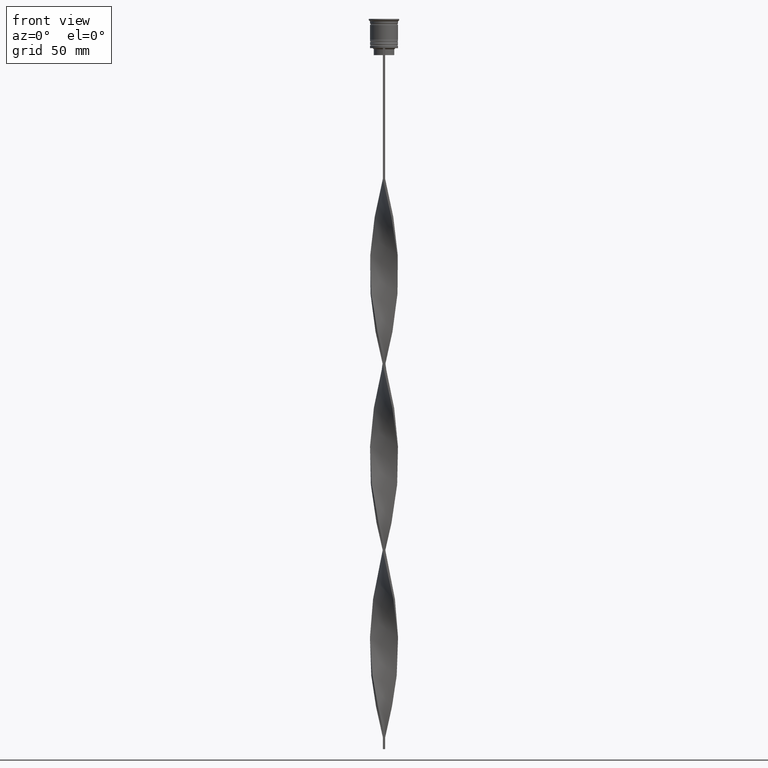
[diagram: clean part render]
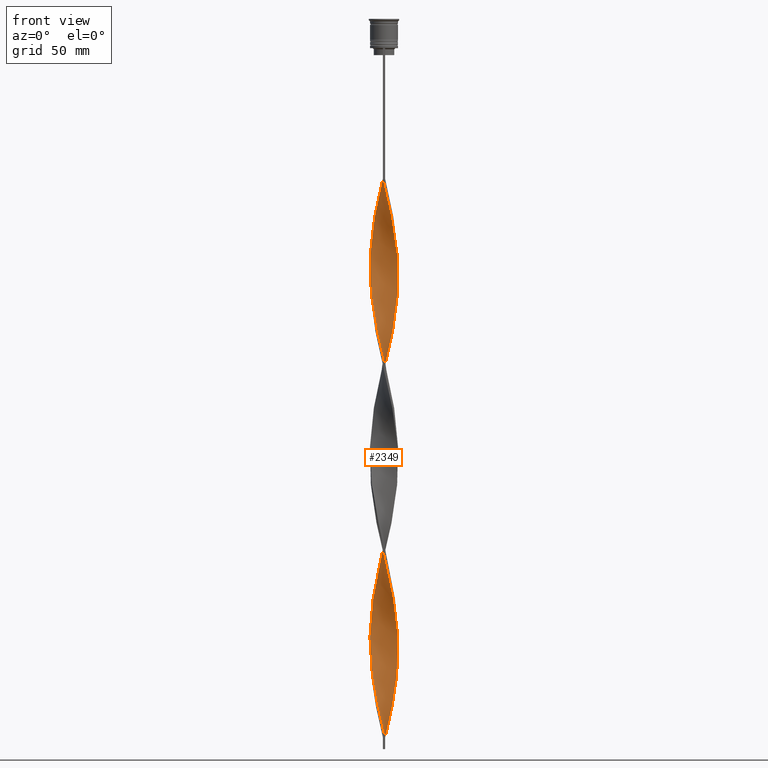
[diagram: same view with one face highlighted and labeled with its STEP entity id]
A machine part, front view. The second image highlights one B-rep face of the part: STEP entity #2349.
In plain terms, the highlighted face is a freeform B-spline surface patch.
Its self-contained STEP definition (entity closure, byte-faithful):
#4 = CARTESIAN_POINT ( 'NONE',  ( 2.766568768664326328, 5.368484725653163814, -138.2083333333333144 ) ) ;
#12 = CARTESIAN_POINT ( 'NONE',  ( -3.122203016567365985, -5.147994592395920499, -291.5666666666667197 ) ) ;
#18 = CARTESIAN_POINT ( 'NONE',  ( 5.393717298852745756, 2.717047055421899948, -122.2750000000000341 ) ) ;
#25 = CARTESIAN_POINT ( 'NONE',  ( -6.039350853412310371, 0.02778975905228745977, -189.9916666666667027 ) ) ;
#39 = CARTESIAN_POINT ( 'NONE',  ( -4.290116269486021316, 4.250815615339194053, -245.7583333333333826 ) ) ;
#43 = CARTESIAN_POINT ( 'NONE',  ( 4.902271885939097906, 3.527358977712830246, -126.2583333333333258 ) ) ;
#56 = CARTESIAN_POINT ( 'NONE',  ( 5.960649146587692293, 0.9722102409477122453, -189.9916666666667027 ) ) ;
#60 = CARTESIAN_POINT ( 'NONE',  ( 4.596194077712558723, 3.889087296526011261, -128.2500000000000000 ) ) ;
#64 = CARTESIAN_POINT ( 'NONE',  ( 2.766568768664326328, 5.368484725653163814, -297.5416666666666856 ) ) ;
#71 = CARTESIAN_POINT ( 'NONE',  ( -5.393717298852745756, 2.717047055421900836, -94.39166666666669414 ) ) ;
#72 = CARTESIAN_POINT ( 'NONE',  ( -5.735176475513732441, -1.892691680130197174, -273.6416666666666515 ) ) ;
#77 = CARTESIAN_POINT ( 'NONE',  ( -1.839832417264293252, 5.752351491147217999, -158.1250000000000000 ) ) ;
#84 = VECTOR ( 'NONE', #731, 1000.000000000000000 ) ;
#93 = CARTESIAN_POINT ( 'NONE',  ( -2.329630224397260641, 5.551830600583447684, -76.46666666666666856 ) ) ;
#95 = CARTESIAN_POINT ( 'NONE',  ( 5.368484725653162926, 2.766568768664326772, -197.9583333333333997 ) ) ;
#100 = CARTESIAN_POINT ( 'NONE',  ( 6.000000000000000000, -0.5000000000000001110, -108.3333333333333428 ) ) ;
#113 = CARTESIAN_POINT ( 'NONE',  ( -3.931220010942312992, 4.560209340103448028, -84.43333333333333712 ) ) ;
#118 = CARTESIAN_POINT ( 'NONE',  ( -4.596194077712559611, -3.889087296526010373, -207.9166666666666572 ) ) ;
#132 =( BOUNDED_SURFACE ( )  B_SPLINE_SURFACE ( 1, 2, ( 
 ( #1364, #979, #665, #1932, #1057, #346, #1976, #2332, #2928, #2910, #2950, #2315, #706, #2567, #3177, #1619, #2250, #2600, #3592, #3574, #100, #329, #724, #1911, #2893, #2272, #3513, #18, #3859, #43, #60, #3260, #1017, #1995, #1307, #2293, #1594, #2868, #1285, #682, #3531, #3555, #3241, #395, #1662, #77, #1343, #2391, #1382, #137, #2661, #3646, #2681, #2075, #1158, #3302, #782, #3628, #2410, #1076, #2040, #742, #766, #1426, #826, #3940, #3341, #3917, #2703, #2970, #118, #2056, #493, #3959, #1459, #1764, #3977, #1706, #2372, #3612, #452, #468, #513, #196, #801, #1135, #160, #2720, #2737, #3998, #3030, #2351, #2015, #1724, #436, #3283, #179, #3319, #1740, #2988, #1402, #2435, #2100, #1100, #3006, #3667, #1118, #1442, #3363, #1783, #3046, #2501, #305, #1240, #2200, #4021, #1802, #1527, #3398, #1842, #932 ),
 ( #3064, #1507, #1550, #4108, #1885, #1569, #3776, #2118, #3463, #3110, #2826, #3754, #844, #2474, #1259, #596, #529, #4090, #3380, #217, #3725, #2520, #887, #282, #911, #241, #1220, #617, #2844, #2455, #3090, #2180, #3688, #3707, #1487, #2783, #3425, #2763, #1179, #863, #2160, #3444, #3154, #2136, #551, #1823, #4042, #576, #261, #1861, #2803, #1199, #4062, #3129, #994, #391, #342, #3255, #3875, #370, #3794, #56, #952, #2222, #720, #95, #3817, #3237, #3190, #702, #1657, #3527, #3490, #324, #3855, #3508, #2923, #1035, #2311, #1947, #1611, #639, #660, #1012, #3549, #2887, #3570, #2942, #975, #39, #2616, #3217, #1320, #407, #1675, #1926, #1589, #3836, #2537, #1905, #2286, #2907, #1991, #72, #3172, #2596, #1637, #1972, #1337, #2245, #2266, #2864, #12, #1279, #2561, #1303, #2580, #678, #2088, #3638, #2402 ) ),
 .UNSPECIFIED., .F., .F., .F. ) 
 B_SPLINE_SURFACE_WITH_KNOTS ( ( 2, 2 ),
 ( 3, 2, 2, 2, 2, 2, 2, 2, 2, 2, 2, 2, 2, 2, 2, 2, 2, 2, 2, 2, 2, 2, 2, 2, 2, 2, 2, 2, 2, 2, 2, 2, 2, 2, 2, 2, 2, 2, 2, 2, 2, 2, 2, 2, 2, 2, 2, 2, 2, 2, 2, 2, 2, 2, 2, 2, 2, 2, 2, 2, 3 ),
 ( 0.000000000000000000, 1.000000000000000000 ),
 ( 0.000000000000000000, 0.01250000000000000069, 0.02500000000000000139, 0.03749999999999999861, 0.05000000000000000278, 0.06250000000000000000, 0.07499999999999999722, 0.08749999999999999445, 0.1000000000000000056, 0.1125000000000000028, 0.1250000000000000000, 0.1375000000000000111, 0.1499999999999999944, 0.1625000000000000056, 0.1749999999999999889, 0.1875000000000000000, 0.2000000000000000111, 0.2124999999999999944, 0.2250000000000000056, 0.2374999999999999889, 0.2500000000000000000, 0.2625000000000000111, 0.2750000000000000222, 0.2874999999999999778, 0.2999999999999999889, 0.3125000000000000000, 0.3250000000000000111, 0.3375000000000000222, 0.3499999999999999778, 0.3624999999999999889, 0.3750000000000000000, 0.3875000000000000111, 0.4000000000000000222, 0.4124999999999999778, 0.4249999999999999889, 0.4375000000000000000, 0.4500000000000000111, 0.4625000000000000222, 0.4749999999999999778, 0.4874999999999999889, 0.5000000000000000000, 0.5124999999999999556, 0.5250000000000000222, 0.5374999999999999778, 0.5500000000000000444, 0.5625000000000000000, 0.5749999999999999556, 0.5875000000000000222, 0.5999999999999999778, 0.6125000000000000444, 0.6250000000000000000, 0.6374999999999999556, 0.6500000000000000222, 0.6624999999999999778, 0.6750000000000000444, 0.6875000000000000000, 0.6999999999999999556, 0.7125000000000000222, 0.7249999999999999778, 0.7375000000000000444, 0.7500000000000000000 ),
 .UNSPECIFIED. ) 
 GEOMETRIC_REPRESENTATION_ITEM ( )  RATIONAL_B_SPLINE_SURFACE ( (
 ( 1.000000000000000000, 0.9969173337331279638, 1.000000000000000000, 0.9969173337331279638, 1.000000000000000000, 0.9969173337331279638, 1.000000000000000000, 0.9969173337331279638, 1.000000000000000000, 0.9969173337331279638, 1.000000000000000000, 0.9969173337331279638, 1.000000000000000000, 0.9969173337331279638, 1.000000000000000000, 0.9969173337331279638, 1.000000000000000000, 0.9969173337331279638, 1.000000000000000000, 0.9969173337331279638, 1.000000000000000000, 0.9969173337331279638, 1.000000000000000000, 0.9969173337331279638, 1.000000000000000000, 0.9969173337331279638, 1.000000000000000000, 0.9969173337331279638, 1.000000000000000000, 0.9969173337331279638, 1.000000000000000000, 0.9969173337331279638, 1.000000000000000000, 0.9969173337331279638, 1.000000000000000000, 0.9969173337331279638, 1.000000000000000000, 0.9969173337331279638, 1.000000000000000000, 0.9969173337331279638, 1.000000000000000000, 0.9969173337331279638, 1.000000000000000000, 0.9969173337331279638, 1.000000000000000000, 0.9969173337331279638, 1.000000000000000000, 0.9969173337331279638, 1.000000000000000000, 0.9969173337331279638, 1.000000000000000000, 0.9969173337331279638, 1.000000000000000000, 0.9969173337331279638, 1.000000000000000000, 0.9969173337331279638, 1.000000000000000000, 0.9969173337331279638, 1.000000000000000000, 0.9969173337331279638, 1.000000000000000000, 0.9969173337331279638, 1.000000000000000000, 0.9969173337331279638, 1.000000000000000000, 0.9969173337331279638, 1.000000000000000000, 0.9969173337331279638, 1.000000000000000000, 0.9969173337331279638, 1.000000000000000000, 0.9969173337331279638, 1.000000000000000000, 0.9969173337331279638, 1.000000000000000000, 0.9969173337331279638, 1.000000000000000000, 0.9969173337331279638, 1.000000000000000000, 0.9969173337331279638, 1.000000000000000000, 0.9969173337331279638, 1.000000000000000000, 0.9969173337331279638, 1.000000000000000000, 0.9969173337331279638, 1.000000000000000000, 0.9969173337331279638, 1.000000000000000000, 0.9969173337331279638, 1.000000000000000000, 0.9969173337331279638, 1.000000000000000000, 0.9969173337331279638, 1.000000000000000000, 0.9969173337331279638, 1.000000000000000000, 0.9969173337331279638, 1.000000000000000000, 0.9969173337331279638, 1.000000000000000000, 0.9969173337331279638, 1.000000000000000000, 0.9969173337331279638, 1.000000000000000000, 0.9969173337331279638, 1.000000000000000000, 0.9969173337331279638, 1.000000000000000000, 0.9969173337331279638, 1.000000000000000000, 0.9969173337331279638, 1.000000000000000000, 0.9969173337331279638, 1.000000000000000000, 0.9969173337331279638, 1.000000000000000000, 0.9969173337331279638, 1.000000000000000000, 0.9969173337331279638, 1.000000000000000000),
 ( 1.000000000000000000, 0.9969173337331279638, 1.000000000000000000, 0.9969173337331279638, 1.000000000000000000, 0.9969173337331279638, 1.000000000000000000, 0.9969173337331279638, 1.000000000000000000, 0.9969173337331279638, 1.000000000000000000, 0.9969173337331279638, 1.000000000000000000, 0.9969173337331279638, 1.000000000000000000, 0.9969173337331279638, 1.000000000000000000, 0.9969173337331279638, 1.000000000000000000, 0.9969173337331279638, 1.000000000000000000, 0.9969173337331279638, 1.000000000000000000, 0.9969173337331279638, 1.000000000000000000, 0.9969173337331279638, 1.000000000000000000, 0.9969173337331279638, 1.000000000000000000, 0.9969173337331279638, 1.000000000000000000, 0.9969173337331279638, 1.000000000000000000, 0.9969173337331279638, 1.000000000000000000, 0.9969173337331279638, 1.000000000000000000, 0.9969173337331279638, 1.000000000000000000, 0.9969173337331279638, 1.000000000000000000, 0.9969173337331279638, 1.000000000000000000, 0.9969173337331279638, 1.000000000000000000, 0.9969173337331279638, 1.000000000000000000, 0.9969173337331279638, 1.000000000000000000, 0.9969173337331279638, 1.000000000000000000, 0.9969173337331279638, 1.000000000000000000, 0.9969173337331279638, 1.000000000000000000, 0.9969173337331279638, 1.000000000000000000, 0.9969173337331279638, 1.000000000000000000, 0.9969173337331279638, 1.000000000000000000, 0.9969173337331279638, 1.000000000000000000, 0.9969173337331279638, 1.000000000000000000, 0.9969173337331279638, 1.000000000000000000, 0.9969173337331279638, 1.000000000000000000, 0.9969173337331279638, 1.000000000000000000, 0.9969173337331279638, 1.000000000000000000, 0.9969173337331279638, 1.000000000000000000, 0.9969173337331279638, 1.000000000000000000, 0.9969173337331279638, 1.000000000000000000, 0.9969173337331279638, 1.000000000000000000, 0.9969173337331279638, 1.000000000000000000, 0.9969173337331279638, 1.000000000000000000, 0.9969173337331279638, 1.000000000000000000, 0.9969173337331279638, 1.000000000000000000, 0.9969173337331279638, 1.000000000000000000, 0.9969173337331279638, 1.000000000000000000, 0.9969173337331279638, 1.000000000000000000, 0.9969173337331279638, 1.000000000000000000, 0.9969173337331279638, 1.000000000000000000, 0.9969173337331279638, 1.000000000000000000, 0.9969173337331279638, 1.000000000000000000, 0.9969173337331279638, 1.000000000000000000, 0.9969173337331279638, 1.000000000000000000, 0.9969173337331279638, 1.000000000000000000, 0.9969173337331279638, 1.000000000000000000, 0.9969173337331279638, 1.000000000000000000, 0.9969173337331279638, 1.000000000000000000, 0.9969173337331279638, 1.000000000000000000, 0.9969173337331279638, 1.000000000000000000, 0.9969173337331279638, 1.000000000000000000) ) ) 
 REPRESENTATION_ITEM ( '' )  SURFACE ( )  );
#133 = CARTESIAN_POINT ( 'NONE',  ( 6.039350853412310371, 0.02778975905228534687, -186.0083333333333258 ) ) ;
#137 = CARTESIAN_POINT ( 'NONE',  ( -3.527358977712830246, 4.902271885939098794, -166.0916666666666686 ) ) ;
#152 = CARTESIAN_POINT ( 'NONE',  ( -0.9173149989399231874, -5.969343698769575823, -142.1916666666666913 ) ) ;
#160 = CARTESIAN_POINT ( 'NONE',  ( 2.278439736343096378, -5.573034394999980989, -239.7833333333333599 ) ) ;
#175 = CARTESIAN_POINT ( 'NONE',  ( -3.122203016567365985, -5.147994592395920499, -291.5666666666667197 ) ) ;
#179 = CARTESIAN_POINT ( 'NONE',  ( 5.551830600583447684, -2.329630224397261085, -259.7000000000000455 ) ) ;
#187 = CARTESIAN_POINT ( 'NONE',  ( 3.889087296526011706, -4.596194077712558723, -88.41666666666667140 ) ) ;
#192 = CARTESIAN_POINT ( 'NONE',  ( -0.02778975905228496524, 6.039350853412310371, -225.8416666666666970 ) ) ;
#196 = CARTESIAN_POINT ( 'NONE',  ( 0.9173149989399222992, -5.969343698769574935, -233.8083333333333371 ) ) ;
#206 = CARTESIAN_POINT ( 'NONE',  ( 6.004347276090942209, 0.4447626199438162731, -112.3166666666666771 ) ) ;
#211 = CARTESIAN_POINT ( 'NONE',  ( -1.432450960538953932, 5.847912811050711035, -231.8166666666666629 ) ) ;
#217 = CARTESIAN_POINT ( 'NONE',  ( -6.039350853412310371, -0.02778975905228876081, -106.3416666666666686 ) ) ;
#233 = CARTESIAN_POINT ( 'NONE',  ( 6.000000000000000000, -0.5000000000000001110, -108.3333333333333428 ) ) ;
#238 = CARTESIAN_POINT ( 'NONE',  ( 0.9173149989399209669, 5.969343698769575823, -221.8583333333333769 ) ) ;
#241 = CARTESIAN_POINT ( 'NONE',  ( -5.368484725653163814, -2.766568768664325439, -118.2916666666666998 ) ) ;
#250 = CARTESIAN_POINT ( 'NONE',  ( 0.02778975905228979124, 6.039350853412310371, -150.1583333333333599 ) ) ;
#261 = CARTESIAN_POINT ( 'NONE',  ( 3.931220010942312104, -4.560209340103448916, -164.1000000000000227 ) ) ;
#271 = CARTESIAN_POINT ( 'NONE',  ( -5.393717298852746644, -2.717047055421897284, -201.9416666666667197 ) ) ;
#282 = CARTESIAN_POINT ( 'NONE',  ( -5.735176475513732441, -1.892691680130197174, -114.3083333333333655 ) ) ;
#296 = CARTESIAN_POINT ( 'NONE',  ( 4.290116269486021316, 4.250815615339194053, -130.2416666666667027 ) ) ;
#305 = CARTESIAN_POINT ( 'NONE',  ( 3.931220010942312992, 4.560209340103447140, -291.5666666666667197 ) ) ;
#316 = CARTESIAN_POINT ( 'NONE',  ( -3.169446260531465498, -5.119043895260433352, -215.8833333333333542 ) ) ;
#324 = CARTESIAN_POINT ( 'NONE',  ( 2.717047055421899060, 5.393717298852745756, -213.8916666666666799 ) ) ;
#329 = CARTESIAN_POINT ( 'NONE',  ( 6.039350853412310371, -0.02778975905228946511, -110.3250000000000171 ) ) ;
#330 = CARTESIAN_POINT ( 'NONE',  ( 0.5000000000000005551, 6.000000000000000000, -307.5000000000000000 ) ) ;
#335 = CARTESIAN_POINT ( 'NONE',  ( 1.839832417264294362, -5.752351491147217111, -237.7916666666667140 ) ) ;
#342 = CARTESIAN_POINT ( 'NONE',  ( 5.860847594958395135, -1.378573708102108775, -180.0333333333333599 ) ) ;
#346 = CARTESIAN_POINT ( 'NONE',  ( 1.839832417264294362, -5.752351491147217111, -78.45833333333332860 ) ) ;
#355 = CARTESIAN_POINT ( 'NONE',  ( 5.393717298852746644, 2.717047055421899948, -281.6083333333334053 ) ) ;
#370 = CARTESIAN_POINT ( 'NONE',  ( 6.039350853412310371, 0.02778975905228534687, -186.0083333333333258 ) ) ;
#391 = CARTESIAN_POINT ( 'NONE',  ( 5.752351491147215334, -1.839832417264297471, -178.0416666666667140 ) ) ;
#395 = CARTESIAN_POINT ( 'NONE',  ( -0.9173149989399215221, 5.969343698769574935, -154.1416666666666799 ) ) ;
#399 = CARTESIAN_POINT ( 'NONE',  ( 4.560209340103448028, -3.931220010942312992, -251.7333333333333769 ) ) ;
#406 = CARTESIAN_POINT ( 'NONE',  ( -5.119043895260434240, -3.169446260531464166, -120.2833333333333456 ) ) ;
#407 = CARTESIAN_POINT ( 'NONE',  ( -5.393717298852744868, 2.717047055421900836, -253.7250000000000512 ) ) ;
#417 = CARTESIAN_POINT ( 'NONE',  ( 5.368484725653163814, -2.766568768664325884, -257.7083333333333144 ) ) ;
#429 = CARTESIAN_POINT ( 'NONE',  ( -4.560209340103448916, -3.931220010942312104, -124.2666666666666799 ) ) ;
#435 = EDGE_CURVE ( 'NONE', #2814, #1648, #2244, .T. ) ;
#436 = CARTESIAN_POINT ( 'NONE',  ( 5.119043895260433352, -3.169446260531464610, -255.7166666666666970 ) ) ;
#441 = CARTESIAN_POINT ( 'NONE',  ( 1.892691680130198284, 5.735176475513732441, -301.5250000000000341 ) ) ;
#449 = CARTESIAN_POINT ( 'NONE',  ( 6.004347276090941321, -0.4447626199438176609, -184.0166666666666515 ) ) ;
#452 = CARTESIAN_POINT ( 'NONE',  ( -0.4999999999999997780, -6.000000000000000000, -227.8333333333333428 ) ) ;
#465 = CARTESIAN_POINT ( 'NONE',  ( -6.004347276090942209, 0.4447626199438168837, -104.3499999999999943 ) ) ;
#466 = CARTESIAN_POINT ( 'NONE',  ( 0.5000000000000005551, 6.000000000000000000, -307.5000000000000000 ) ) ;
#468 = CARTESIAN_POINT ( 'NONE',  ( -0.02778975905228908000, -6.039350853412310371, -229.8250000000000455 ) ) ;
#486 = CARTESIAN_POINT ( 'NONE',  ( -5.969343698769575823, 0.9173149989399227433, -102.3583333333333485 ) ) ;
#493 = CARTESIAN_POINT ( 'NONE',  ( -3.931220010942313881, -4.560209340103447140, -211.9000000000000057 ) ) ;
#503 = CARTESIAN_POINT ( 'NONE',  ( 1.378573708102107886, -5.860847594958395135, -76.46666666666666856 ) ) ;
#508 = CARTESIAN_POINT ( 'NONE',  ( 5.551830600583448572, 2.329630224397259752, -195.9666666666666686 ) ) ;
#513 = CARTESIAN_POINT ( 'NONE',  ( 0.4447626199438165506, -6.004347276090942209, -231.8166666666666629 ) ) ;
#526 = CARTESIAN_POINT ( 'NONE',  ( 5.735176475513733330, 1.892691680130193843, -193.9750000000000227 ) ) ;
#529 = CARTESIAN_POINT ( 'NONE',  ( -5.860847594958395135, 1.378573708102108331, -100.3666666666666742 ) ) ;
#545 = CARTESIAN_POINT ( 'NONE',  ( 1.839832417264297693, 5.752351491147215334, -217.8750000000000284 ) ) ;
#551 = CARTESIAN_POINT ( 'NONE',  ( 2.329630224397260196, -5.551830600583448572, -156.1333333333333542 ) ) ;
#568 = CARTESIAN_POINT ( 'NONE',  ( 5.573034394999980989, 2.278439736343096378, -120.2833333333333456 ) ) ;
#573 = CARTESIAN_POINT ( 'NONE',  ( -3.889087296526012150, -4.596194077712557835, -287.5833333333333712 ) ) ;
#576 = CARTESIAN_POINT ( 'NONE',  ( 3.572323752398603336, -4.869603064867704667, -162.1083333333333769 ) ) ;
#586 = CARTESIAN_POINT ( 'NONE',  ( -3.527358977712830246, 4.902271885939098794, -166.0916666666666970 ) ) ;
#596 = CARTESIAN_POINT ( 'NONE',  ( -5.752351491147217111, 1.839832417264294362, -98.37500000000002842 ) ) ;
#606 = CARTESIAN_POINT ( 'NONE',  ( -6.004347276090942209, -0.4447626199438153849, -191.9833333333333485 ) ) ;
#617 = CARTESIAN_POINT ( 'NONE',  ( -4.869603064867704667, -3.572323752398604224, -122.2750000000000341 ) ) ;
#629 = CARTESIAN_POINT ( 'NONE',  ( -5.368484725653162037, 2.766568768664328548, -178.0416666666667140 ) ) ;
#639 = CARTESIAN_POINT ( 'NONE',  ( -0.9722102409477106910, 5.960649146587692293, -229.8250000000000455 ) ) ;
#650 = CARTESIAN_POINT ( 'NONE',  ( -5.860847594958396023, -1.378573708102106776, -195.9666666666666686 ) ) ;
#660 = CARTESIAN_POINT ( 'NONE',  ( -1.432450960538953932, 5.847912811050711035, -231.8166666666666629 ) ) ;
#665 = CARTESIAN_POINT ( 'NONE',  ( 0.4447626199438165506, -6.004347276090942209, -72.48333333333334849 ) ) ;
#671 = CARTESIAN_POINT ( 'NONE',  ( -0.02778975905228908347, -6.039350853412310371, -229.8250000000000171 ) ) ;
#678 = CARTESIAN_POINT ( 'NONE',  ( -0.9173149989399231874, -5.969343698769574935, -301.5250000000000341 ) ) ;
#682 = CARTESIAN_POINT ( 'NONE',  ( 0.9722102409477113572, 5.960649146587692293, -146.1749999999999829 ) ) ;
#691 = CARTESIAN_POINT ( 'NONE',  ( 3.931220010942312992, 4.560209340103447140, -291.5666666666667197 ) ) ;
#702 = CARTESIAN_POINT ( 'NONE',  ( 4.250815615339193165, 4.290116269486022205, -205.9250000000000114 ) ) ;
#706 = CARTESIAN_POINT ( 'NONE',  ( 4.560209340103448028, -3.931220010942312992, -92.40000000000000568 ) ) ;
#719 = CARTESIAN_POINT ( 'NONE',  ( -1.839832417264294806, -5.752351491147217111, -138.2083333333333144 ) ) ;
#720 = CARTESIAN_POINT ( 'NONE',  ( 5.551830600583448572, 2.329630224397259752, -195.9666666666666686 ) ) ;
#724 = CARTESIAN_POINT ( 'NONE',  ( 6.004347276090942209, 0.4447626199438162731, -112.3166666666666771 ) ) ;
#731 = DIRECTION ( 'NONE',  ( 0.000000000000000000, 1.000000000000000000, 0.000000000000000000 ) ) ;
#736 = CARTESIAN_POINT ( 'NONE',  ( -1.378573708102108331, -5.860847594958395135, -140.1999999999999886 ) ) ;
#742 = CARTESIAN_POINT ( 'NONE',  ( -6.039350853412310371, 0.02778975905228745977, -189.9916666666667027 ) ) ;
#748 = CARTESIAN_POINT ( 'NONE',  ( 5.752351491147217111, 1.839832417264293918, -277.6250000000000568 ) ) ;
#758 = CARTESIAN_POINT ( 'NONE',  ( -4.869603064867703779, -3.572323752398604224, -122.2750000000000199 ) ) ;
#766 = CARTESIAN_POINT ( 'NONE',  ( -6.004347276090942209, -0.4447626199438153849, -191.9833333333333485 ) ) ;
#771 = CARTESIAN_POINT ( 'NONE',  ( 5.860847594958396023, 1.378573708102107442, -275.6333333333333258 ) ) ;
#779 = CARTESIAN_POINT ( 'NONE',  ( -5.551830600583448572, -2.329630224397260641, -116.3000000000000114 ) ) ;
#782 = CARTESIAN_POINT ( 'NONE',  ( -5.551830600583447684, 2.329630224397261973, -180.0333333333333599 ) ) ;
#798 = CARTESIAN_POINT ( 'NONE',  ( -1.892691680130197396, 5.735176475513732441, -74.47500000000000853 ) ) ;
#801 = CARTESIAN_POINT ( 'NONE',  ( 1.378573708102107886, -5.860847594958395135, -235.8000000000000114 ) ) ;
#820 = CARTESIAN_POINT ( 'NONE',  ( -6.039350853412310371, -0.02778975905228876081, -265.6750000000000682 ) ) ;
#826 = CARTESIAN_POINT ( 'NONE',  ( -5.860847594958396023, -1.378573708102106776, -195.9666666666666686 ) ) ;
#840 = CARTESIAN_POINT ( 'NONE',  ( -2.766568768664325884, 5.368484725653163814, -237.7916666666667140 ) ) ;
#844 = CARTESIAN_POINT ( 'NONE',  ( -5.147994592395921387, 3.122203016567365541, -92.40000000000000568 ) ) ;
#859 = CARTESIAN_POINT ( 'NONE',  ( 0.4999999999999990563, -6.000000000000000000, -307.5000000000000000 ) ) ;
#861 = EDGE_CURVE ( 'NONE', #1298, #3415, #3293, .T. ) ;
#863 = CARTESIAN_POINT ( 'NONE',  ( 0.02778975905228832713, -6.039350853412310371, -146.1749999999999829 ) ) ;
#873 = CARTESIAN_POINT ( 'NONE',  ( 1.839832417264294362, -5.752351491147217111, -78.45833333333334281 ) ) ;
#878 = CARTESIAN_POINT ( 'NONE',  ( -1.892691680130197396, 5.735176475513732441, -233.8083333333333371 ) ) ;
#887 = CARTESIAN_POINT ( 'NONE',  ( -5.847912811050711035, -1.432450960538953488, -112.3166666666666771 ) ) ;
#902 = CARTESIAN_POINT ( 'NONE',  ( -2.717047055421899060, 5.393717298852746644, -162.1083333333333769 ) ) ;
#907 = CARTESIAN_POINT ( 'NONE',  ( -5.969343698769575823, 0.9173149989399227433, -261.6916666666666629 ) ) ;
#911 = CARTESIAN_POINT ( 'NONE',  ( -5.551830600583448572, -2.329630224397260641, -116.3000000000000114 ) ) ;
#923 = CARTESIAN_POINT ( 'NONE',  ( -5.147994592395921387, -3.122203016567363765, -203.9333333333333655 ) ) ;
#932 = CARTESIAN_POINT ( 'NONE',  ( 0.5000000000000005551, 6.000000000000000000, -307.5000000000000000 ) ) ;
#942 = CARTESIAN_POINT ( 'NONE',  ( 2.278439736343096378, -5.573034394999980989, -239.7833333333333599 ) ) ;
#952 = CARTESIAN_POINT ( 'NONE',  ( 5.847912811050711035, 1.432450960538952600, -191.9833333333333485 ) ) ;
#966 = CARTESIAN_POINT ( 'NONE',  ( -1.432450960538955265, -5.847912811050710147, -223.8500000000000227 ) ) ;
#975 = CARTESIAN_POINT ( 'NONE',  ( -3.931220010942312992, 4.560209340103448028, -243.7666666666666799 ) ) ;
#979 = CARTESIAN_POINT ( 'NONE',  ( -0.02778975905228908000, -6.039350853412310371, -70.49166666666670267 ) ) ;
#984 = CARTESIAN_POINT ( 'NONE',  ( 3.169446260531464610, 5.119043895260433352, -136.2166666666666686 ) ) ;
#994 = CARTESIAN_POINT ( 'NONE',  ( 5.573034394999980101, -2.278439736343097710, -176.0500000000000114 ) ) ;
#1004 = CARTESIAN_POINT ( 'NONE',  ( 4.250815615339194053, -4.290116269486021316, -249.7416666666667027 ) ) ;
#1012 = CARTESIAN_POINT ( 'NONE',  ( -1.892691680130197396, 5.735176475513732441, -233.8083333333333371 ) ) ;
#1017 = CARTESIAN_POINT ( 'NONE',  ( 3.931220010942312992, 4.560209340103447140, -132.2333333333333485 ) ) ;
#1034 = CARTESIAN_POINT ( 'NONE',  ( -4.250815615339194053, -4.290116269486020428, -126.2583333333333400 ) ) ;
#1035 = CARTESIAN_POINT ( 'NONE',  ( 0.9173149989399209669, 5.969343698769574935, -221.8583333333333769 ) ) ;
#1043 = CARTESIAN_POINT ( 'NONE',  ( 3.169446260531464610, 5.119043895260433352, -295.5499999999999545 ) ) ;
#1052 = CARTESIAN_POINT ( 'NONE',  ( -2.717047055421900836, -5.393717298852745756, -134.2250000000000227 ) ) ;
#1053 = EDGE_LOOP ( 'NONE', ( #3349, #1723, #3096, #3827 ) ) ;
#1057 = CARTESIAN_POINT ( 'NONE',  ( 1.378573708102107886, -5.860847594958395135, -76.46666666666666856 ) ) ;
#1061 = CARTESIAN_POINT ( 'NONE',  ( 5.147994592395920499, 3.122203016567364653, -283.6000000000000227 ) ) ;
#1071 = CARTESIAN_POINT ( 'NONE',  ( 5.860847594958395135, -1.378573708102108775, -180.0333333333333599 ) ) ;
#1076 = CARTESIAN_POINT ( 'NONE',  ( -5.960649146587692293, 0.9722102409477144658, -186.0083333333333258 ) ) ;
#1081 = CARTESIAN_POINT ( 'NONE',  ( 4.902271885939097906, 3.527358977712830246, -285.5916666666666970 ) ) ;
#1094 = CARTESIAN_POINT ( 'NONE',  ( 2.329630224397260196, -5.551830600583448572, -156.1333333333333542 ) ) ;
#1100 = CARTESIAN_POINT ( 'NONE',  ( 5.969343698769574935, 0.9173149989399217441, -273.6416666666666515 ) ) ;
#1114 = CARTESIAN_POINT ( 'NONE',  ( 0.02778975905228832713, -6.039350853412310371, -146.1750000000000114 ) ) ;
#1118 = CARTESIAN_POINT ( 'NONE',  ( 5.573034394999980989, 2.278439736343096378, -279.6166666666666742 ) ) ;
#1132 = CARTESIAN_POINT ( 'NONE',  ( -0.4447626199438173278, -6.004347276090941321, -303.5166666666666515 ) ) ;
#1135 = CARTESIAN_POINT ( 'NONE',  ( 1.839832417264294362, -5.752351491147217111, -237.7916666666667140 ) ) ;
#1147 = CARTESIAN_POINT ( 'NONE',  ( 5.960649146587691405, -0.9722102409477109131, -106.3416666666666686 ) ) ;
#1153 = CARTESIAN_POINT ( 'NONE',  ( 5.119043895260435129, 3.169446260531463722, -199.9500000000000171 ) ) ;
#1158 = CARTESIAN_POINT ( 'NONE',  ( -5.119043895260433352, 3.169446260531465498, -176.0500000000000114 ) ) ;
#1175 = CARTESIAN_POINT ( 'NONE',  ( -5.960649146587691405, -0.9722102409477102469, -269.6583333333334167 ) ) ;
#1179 = CARTESIAN_POINT ( 'NONE',  ( -0.4447626199438173278, -6.004347276090941321, -144.1833333333333371 ) ) ;
#1194 = CARTESIAN_POINT ( 'NONE',  ( -2.717047055421900836, -5.393717298852745756, -293.5583333333333940 ) ) ;
#1199 = CARTESIAN_POINT ( 'NONE',  ( 4.902271885939097018, -3.527358977712834243, -170.0750000000000455 ) ) ;
#1208 = CARTESIAN_POINT ( 'NONE',  ( 1.892691680130198284, 5.735176475513732441, -142.1916666666666913 ) ) ;
#1213 = CARTESIAN_POINT ( 'NONE',  ( -5.119043895260434240, -3.169446260531464166, -279.6166666666666742 ) ) ;
#1220 = CARTESIAN_POINT ( 'NONE',  ( -5.119043895260434240, -3.169446260531464166, -120.2833333333333456 ) ) ;
#1233 = CARTESIAN_POINT ( 'NONE',  ( 3.122203016567365541, -5.147994592395921387, -243.7666666666666799 ) ) ;
#1240 = CARTESIAN_POINT ( 'NONE',  ( 3.572323752398604224, 4.869603064867703779, -293.5583333333334508 ) ) ;
#1252 = CARTESIAN_POINT ( 'NONE',  ( -2.766568768664328992, -5.368484725653162037, -217.8750000000000284 ) ) ;
#1259 = CARTESIAN_POINT ( 'NONE',  ( -5.573034394999980101, 2.278439736343096822, -96.38333333333335418 ) ) ;
#1269 = CARTESIAN_POINT ( 'NONE',  ( -1.839832417264293252, 5.752351491147217999, -158.1250000000000284 ) ) ;
#1279 = CARTESIAN_POINT ( 'NONE',  ( -2.717047055421900836, -5.393717298852744868, -293.5583333333334508 ) ) ;
#1285 = CARTESIAN_POINT ( 'NONE',  ( 1.432450960538954376, 5.847912811050710147, -144.1833333333333371 ) ) ;
#1292 = CARTESIAN_POINT ( 'NONE',  ( -3.572323752398603780, -4.869603064867703779, -213.8916666666666799 ) ) ;
#1298 = VERTEX_POINT ( 'NONE', #3240 ) ;
#1303 = CARTESIAN_POINT ( 'NONE',  ( -1.839832417264294806, -5.752351491147217111, -297.5416666666666856 ) ) ;
#1307 = CARTESIAN_POINT ( 'NONE',  ( 3.169446260531464610, 5.119043895260433352, -136.2166666666666686 ) ) ;
#1312 = CARTESIAN_POINT ( 'NONE',  ( 3.572323752398604224, 4.869603064867703779, -293.5583333333333940 ) ) ;
#1320 = CARTESIAN_POINT ( 'NONE',  ( -5.147994592395921387, 3.122203016567365541, -251.7333333333333769 ) ) ;
#1335 = CARTESIAN_POINT ( 'NONE',  ( -6.000000000000000000, -0.4999999999999994449, -108.3333333333333428 ) ) ;
#1337 = CARTESIAN_POINT ( 'NONE',  ( -4.560209340103448916, -3.931220010942312104, -283.6000000000000227 ) ) ;
#1343 = CARTESIAN_POINT ( 'NONE',  ( -2.278439736343095934, 5.573034394999980989, -160.1166666666666742 ) ) ;
#1350 = CARTESIAN_POINT ( 'NONE',  ( 2.329630224397261529, 5.551830600583447684, -299.5333333333333030 ) ) ;
#1359 = CARTESIAN_POINT ( 'NONE',  ( 1.432450960538953044, -5.847912811050711035, -152.1500000000000057 ) ) ;
#1360 = CARTESIAN_POINT ( 'NONE',  ( 4.250815615339194053, -4.290116269486021316, -90.40833333333335986 ) ) ;
#1364 = CARTESIAN_POINT ( 'NONE',  ( -0.4999999999999997780, -6.000000000000000000, -68.50000000000000000 ) ) ;
#1378 = CARTESIAN_POINT ( 'NONE',  ( -3.122203016567365985, -5.147994592395920499, -132.2333333333333485 ) ) ;
#1382 = CARTESIAN_POINT ( 'NONE',  ( -3.122203016567364653, 5.147994592395920499, -164.1000000000000227 ) ) ;
#1398 = CARTESIAN_POINT ( 'NONE',  ( 6.000000000000000000, 0.4999999999999987232, -188.0000000000000000 ) ) ;
#1402 = CARTESIAN_POINT ( 'NONE',  ( 6.000000000000000000, -0.5000000000000001110, -267.6666666666667425 ) ) ;
#1419 = CARTESIAN_POINT ( 'NONE',  ( 2.766568768664324995, -5.368484725653164702, -158.1250000000000284 ) ) ;
#1426 = CARTESIAN_POINT ( 'NONE',  ( -5.969343698769575823, -0.9173149989399185245, -193.9749999999999943 ) ) ;
#1439 = CARTESIAN_POINT ( 'NONE',  ( -1.839832417264294806, -5.752351491147217111, -297.5416666666666856 ) ) ;
#1442 = CARTESIAN_POINT ( 'NONE',  ( 5.393717298852745756, 2.717047055421899948, -281.6083333333334622 ) ) ;
#1451 = CARTESIAN_POINT ( 'NONE',  ( 5.368484725653163814, -2.766568768664325884, -98.37500000000001421 ) ) ;
#1456 = CARTESIAN_POINT ( 'NONE',  ( -5.847912811050711035, -1.432450960538953488, -271.6499999999999773 ) ) ;
#1459 = CARTESIAN_POINT ( 'NONE',  ( -3.169446260531465498, -5.119043895260433352, -215.8833333333333542 ) ) ;
#1474 = CARTESIAN_POINT ( 'NONE',  ( 3.122203016567365541, -5.147994592395921387, -84.43333333333333712 ) ) ;
#1481 = CARTESIAN_POINT ( 'NONE',  ( -5.860847594958395135, 1.378573708102108331, -259.7000000000000455 ) ) ;
#1487 = CARTESIAN_POINT ( 'NONE',  ( -2.278439736343097710, -5.573034394999980101, -136.2166666666666686 ) ) ;
#1504 = CARTESIAN_POINT ( 'NONE',  ( -3.169446260531464166, 5.119043895260434240, -239.7833333333333599 ) ) ;
#1507 = CARTESIAN_POINT ( 'NONE',  ( -0.9722102409477106910, 5.960649146587692293, -70.49166666666670267 ) ) ;
#1517 = CARTESIAN_POINT ( 'NONE',  ( -5.551830600583447684, 2.329630224397261973, -180.0333333333333599 ) ) ;
#1522 = CARTESIAN_POINT ( 'NONE',  ( -5.368484725653163814, -2.766568768664325439, -277.6250000000000568 ) ) ;
#1527 = CARTESIAN_POINT ( 'NONE',  ( 1.892691680130198284, 5.735176475513732441, -301.5250000000000341 ) ) ;
#1537 = CARTESIAN_POINT ( 'NONE',  ( -0.9722102409477146878, -5.960649146587691405, -225.8416666666666970 ) ) ;
#1547 = EDGE_CURVE ( 'NONE', #3415, #1648, #2690, .T. ) ;
#1550 = CARTESIAN_POINT ( 'NONE',  ( -1.432450960538953932, 5.847912811050711035, -72.48333333333334849 ) ) ;
#1562 = CARTESIAN_POINT ( 'NONE',  ( -1.378573708102106998, 5.860847594958396023, -156.1333333333333542 ) ) ;
#1569 = CARTESIAN_POINT ( 'NONE',  ( -2.766568768664325884, 5.368484725653163814, -78.45833333333332860 ) ) ;
#1581 = CARTESIAN_POINT ( 'NONE',  ( 3.931220010942312992, 4.560209340103447140, -132.2333333333333485 ) ) ;
#1589 = CARTESIAN_POINT ( 'NONE',  ( -5.860847594958395135, 1.378573708102108331, -259.7000000000000455 ) ) ;
#1594 = CARTESIAN_POINT ( 'NONE',  ( 2.329630224397261529, 5.551830600583447684, -140.1999999999999886 ) ) ;
#1600 = CARTESIAN_POINT ( 'NONE',  ( -5.119043895260433352, 3.169446260531465498, -176.0500000000000114 ) ) ;
#1611 = CARTESIAN_POINT ( 'NONE',  ( -0.4999999999999997780, 6.000000000000000000, -227.8333333333333428 ) ) ;
#1619 = CARTESIAN_POINT ( 'NONE',  ( 5.368484725653163814, -2.766568768664325884, -98.37500000000002842 ) ) ;
#1637 = CARTESIAN_POINT ( 'NONE',  ( -5.119043895260434240, -3.169446260531464166, -279.6166666666666742 ) ) ;
#1647 = CARTESIAN_POINT ( 'NONE',  ( 4.596194077712558723, 3.889087296526011261, -287.5833333333333712 ) ) ;
#1648 = VERTEX_POINT ( 'NONE', #4105 ) ;
#1657 = CARTESIAN_POINT ( 'NONE',  ( 3.889087296526013038, 4.596194077712556947, -207.9166666666666572 ) ) ;
#1662 = CARTESIAN_POINT ( 'NONE',  ( -1.378573708102106998, 5.860847594958396023, -156.1333333333333542 ) ) ;
#1673 = CARTESIAN_POINT ( 'NONE',  ( -0.9722102409477105800, 5.960649146587691405, -70.49166666666668846 ) ) ;
#1675 = CARTESIAN_POINT ( 'NONE',  ( -5.573034394999980101, 2.278439736343096822, -255.7166666666666970 ) ) ;
#1700 = CARTESIAN_POINT ( 'NONE',  ( 5.573034394999980101, -2.278439736343097710, -176.0500000000000114 ) ) ;
#1706 = CARTESIAN_POINT ( 'NONE',  ( -1.892691680130196286, -5.735176475513732441, -221.8583333333333769 ) ) ;
#1719 = CARTESIAN_POINT ( 'NONE',  ( -4.902271885939097906, 3.527358977712831134, -90.40833333333335986 ) ) ;
#1723 = ORIENTED_EDGE ( 'NONE', *, *, #1547, .T. ) ;
#1724 = CARTESIAN_POINT ( 'NONE',  ( 4.869603064867703779, -3.572323752398604224, -253.7250000000000512 ) ) ;
#1737 = CARTESIAN_POINT ( 'NONE',  ( -5.960649146587691405, -0.9722102409477102469, -110.3250000000000171 ) ) ;
#1740 = CARTESIAN_POINT ( 'NONE',  ( 5.847912811050711035, -1.432450960538954376, -263.6833333333333940 ) ) ;
#1758 = CARTESIAN_POINT ( 'NONE',  ( -5.573034394999980101, 2.278439736343096822, -255.7166666666666970 ) ) ;
#1764 = CARTESIAN_POINT ( 'NONE',  ( -2.766568768664328992, -5.368484725653162037, -217.8750000000000568 ) ) ;
#1773 = CARTESIAN_POINT ( 'NONE',  ( 3.527358977712831134, -4.902271885939097906, -86.42499999999999716 ) ) ;
#1779 = CARTESIAN_POINT ( 'NONE',  ( -4.290116269486021316, 4.250815615339194053, -245.7583333333333826 ) ) ;
#1783 = CARTESIAN_POINT ( 'NONE',  ( 4.902271885939097906, 3.527358977712830246, -285.5916666666666401 ) ) ;
#1793 = CARTESIAN_POINT ( 'NONE',  ( 2.278439736343096378, -5.573034394999980989, -80.45000000000000284 ) ) ;
#1798 = CARTESIAN_POINT ( 'NONE',  ( 3.889087296526013038, 4.596194077712556947, -207.9166666666666572 ) ) ;
#1802 = CARTESIAN_POINT ( 'NONE',  ( 2.329630224397261529, 5.551830600583447684, -299.5333333333333030 ) ) ;
#1814 = CARTESIAN_POINT ( 'NONE',  ( 5.119043895260433352, -3.169446260531464610, -96.38333333333335418 ) ) ;
#1819 = CARTESIAN_POINT ( 'NONE',  ( -2.329630224397260641, 5.551830600583447684, -235.8000000000000114 ) ) ;
#1823 = CARTESIAN_POINT ( 'NONE',  ( 2.766568768664324995, -5.368484725653164702, -158.1250000000000000 ) ) ;
#1839 = CARTESIAN_POINT ( 'NONE',  ( 0.02778975905228832713, -6.039350853412310371, -305.5083333333334394 ) ) ;
#1842 = CARTESIAN_POINT ( 'NONE',  ( 0.9722102409477113572, 5.960649146587692293, -305.5083333333334963 ) ) ;
#1851 = CARTESIAN_POINT ( 'NONE',  ( -2.329630224397262417, -5.551830600583447684, -219.8666666666666742 ) ) ;
#1861 = CARTESIAN_POINT ( 'NONE',  ( 4.290116269486020428, -4.250815615339194942, -166.0916666666666686 ) ) ;
#1871 = CARTESIAN_POINT ( 'NONE',  ( 1.432450960538954376, 5.847912811050710147, -144.1833333333333371 ) ) ;
#1885 = CARTESIAN_POINT ( 'NONE',  ( -2.329630224397260641, 5.551830600583447684, -76.46666666666666856 ) ) ;
#1897 = CARTESIAN_POINT ( 'NONE',  ( -5.735176475513732441, 1.892691680130196064, -182.0250000000000341 ) ) ;
#1905 = CARTESIAN_POINT ( 'NONE',  ( -6.039350853412310371, -0.02778975905228876081, -265.6750000000000682 ) ) ;
#1911 = CARTESIAN_POINT ( 'NONE',  ( 5.969343698769574935, 0.9173149989399217441, -114.3083333333333655 ) ) ;
#1918 = CARTESIAN_POINT ( 'NONE',  ( -3.122203016567364653, 5.147994592395920499, -164.1000000000000227 ) ) ;
#1926 = CARTESIAN_POINT ( 'NONE',  ( -5.752351491147217111, 1.839832417264294362, -257.7083333333333144 ) ) ;
#1932 = CARTESIAN_POINT ( 'NONE',  ( 0.9173149989399222992, -5.969343698769574935, -74.47500000000002274 ) ) ;
#1938 = CARTESIAN_POINT ( 'NONE',  ( 0.4447626199438165506, -6.004347276090942209, -231.8166666666666629 ) ) ;
#1947 = CARTESIAN_POINT ( 'NONE',  ( -0.02778975905228496524, 6.039350853412310371, -225.8416666666666970 ) ) ;
#1972 = CARTESIAN_POINT ( 'NONE',  ( -4.869603064867704667, -3.572323752398604224, -281.6083333333334622 ) ) ;
#1976 = CARTESIAN_POINT ( 'NONE',  ( 2.278439736343096378, -5.573034394999980989, -80.45000000000000284 ) ) ;
#1989 = CARTESIAN_POINT ( 'NONE',  ( -0.4999999999999997780, 6.000000000000000888, -68.50000000000000000 ) ) ;
#1991 = CARTESIAN_POINT ( 'NONE',  ( -5.847912811050711035, -1.432450960538953488, -271.6499999999999773 ) ) ;
#1995 = CARTESIAN_POINT ( 'NONE',  ( 3.572323752398604224, 4.869603064867703779, -134.2249999999999943 ) ) ;
#2008 = CARTESIAN_POINT ( 'NONE',  ( 4.902271885939097018, -3.527358977712834243, -170.0750000000000455 ) ) ;
#2015 = CARTESIAN_POINT ( 'NONE',  ( 4.560209340103448028, -3.931220010942312992, -251.7333333333333769 ) ) ;
#2033 = CARTESIAN_POINT ( 'NONE',  ( 5.393717298852746644, -2.717047055421898616, -174.0583333333333371 ) ) ;
#2040 = CARTESIAN_POINT ( 'NONE',  ( -6.000000000000000000, 0.5000000000000008882, -188.0000000000000000 ) ) ;
#2053 = CARTESIAN_POINT ( 'NONE',  ( -3.527358977712831134, -4.902271885939097906, -130.2416666666667027 ) ) ;
#2056 = CARTESIAN_POINT ( 'NONE',  ( -4.290116269486023981, -4.250815615339190501, -209.9083333333333883 ) ) ;
#2071 = CARTESIAN_POINT ( 'NONE',  ( -3.169446260531464166, 5.119043895260434240, -80.45000000000000284 ) ) ;
#2075 = CARTESIAN_POINT ( 'NONE',  ( -4.869603064867704667, 3.572323752398602892, -174.0583333333333371 ) ) ;
#2088 = CARTESIAN_POINT ( 'NONE',  ( -0.4447626199438173278, -6.004347276090941321, -303.5166666666666515 ) ) ;
#2095 = CARTESIAN_POINT ( 'NONE',  ( -2.278439736343097710, -5.573034394999980101, -295.5499999999999545 ) ) ;
#2100 = CARTESIAN_POINT ( 'NONE',  ( 6.004347276090942209, 0.4447626199438162731, -271.6499999999999773 ) ) ;
#2113 = CARTESIAN_POINT ( 'NONE',  ( -4.596194077712558723, 3.889087296526011706, -247.7500000000000284 ) ) ;
#2118 = CARTESIAN_POINT ( 'NONE',  ( -3.572323752398604224, 4.869603064867704667, -82.44166666666666288 ) ) ;
#2136 = CARTESIAN_POINT ( 'NONE',  ( 1.892691680130196952, -5.735176475513732441, -154.1416666666666799 ) ) ;
#2148 = CARTESIAN_POINT ( 'NONE',  ( 0.4447626199438165506, -6.004347276090942209, -72.48333333333334849 ) ) ;
#2154 = CARTESIAN_POINT ( 'NONE',  ( -3.572323752398604224, 4.869603064867703779, -241.7750000000000341 ) ) ;
#2160 = CARTESIAN_POINT ( 'NONE',  ( 0.4999999999999990563, -6.000000000000000000, -148.1666666666666572 ) ) ;
#2172 = CARTESIAN_POINT ( 'NONE',  ( 5.393717298852746644, 2.717047055421899948, -122.2750000000000199 ) ) ;
#2177 = CARTESIAN_POINT ( 'NONE',  ( 4.869603064867705555, 3.572323752398602004, -201.9416666666667197 ) ) ;
#2180 = CARTESIAN_POINT ( 'NONE',  ( -3.527358977712831134, -4.902271885939097906, -130.2416666666667027 ) ) ;
#2191 = CARTESIAN_POINT ( 'NONE',  ( -4.560209340103447140, 3.931220010942312992, -172.0666666666666629 ) ) ;
#2200 = CARTESIAN_POINT ( 'NONE',  ( 3.169446260531464610, 5.119043895260433352, -295.5499999999999545 ) ) ;
#2209 = CARTESIAN_POINT ( 'NONE',  ( 5.147994592395920499, 3.122203016567364653, -124.2666666666666799 ) ) ;
#2222 = CARTESIAN_POINT ( 'NONE',  ( 5.735176475513733330, 1.892691680130193843, -193.9749999999999943 ) ) ;
#2234 = CARTESIAN_POINT ( 'NONE',  ( -4.250815615339191389, 4.290116269486023981, -170.0750000000000455 ) ) ;
#2244 = B_SPLINE_CURVE_WITH_KNOTS ( 'NONE', 3,
 ( #466, #3896, #3589, #2346 ),
 .UNSPECIFIED., .F., .F.,
 ( 4, 4 ),
 ( 0.000000000000000000, 1.000000000000000000 ),
 .UNSPECIFIED. ) ;
#2245 = CARTESIAN_POINT ( 'NONE',  ( -4.250815615339194053, -4.290116269486020428, -285.5916666666666401 ) ) ;
#2250 = CARTESIAN_POINT ( 'NONE',  ( 5.551830600583447684, -2.329630224397261085, -100.3666666666666742 ) ) ;
#2256 = CARTESIAN_POINT ( 'NONE',  ( -4.869603064867703779, 3.572323752398603336, -174.0583333333333371 ) ) ;
#2266 = CARTESIAN_POINT ( 'NONE',  ( -3.889087296526012150, -4.596194077712557835, -287.5833333333333712 ) ) ;
#2272 = CARTESIAN_POINT ( 'NONE',  ( 5.752351491147217111, 1.839832417264293918, -118.2916666666666998 ) ) ;
#2278 = CARTESIAN_POINT ( 'NONE',  ( 0.5000000000000005551, 6.000000000000000000, -307.5000000000000000 ) ) ;
#2286 = CARTESIAN_POINT ( 'NONE',  ( -6.000000000000000000, -0.4999999999999994449, -267.6666666666667425 ) ) ;
#2293 = CARTESIAN_POINT ( 'NONE',  ( 2.766568768664326328, 5.368484725653163814, -138.2083333333333144 ) ) ;
#2300 = CARTESIAN_POINT ( 'NONE',  ( 4.290116269486021316, 4.250815615339194053, -289.5750000000000455 ) ) ;
#2309 = CARTESIAN_POINT ( 'NONE',  ( -5.735176475513732441, -1.892691680130197174, -114.3083333333333655 ) ) ;
#2311 = CARTESIAN_POINT ( 'NONE',  ( 0.4447626199438179939, 6.004347276090941321, -223.8500000000000227 ) ) ;
#2315 = CARTESIAN_POINT ( 'NONE',  ( 4.250815615339194053, -4.290116269486021316, -90.40833333333334565 ) ) ;
#2327 = CARTESIAN_POINT ( 'NONE',  ( 3.931220010942312104, -4.560209340103448916, -164.1000000000000227 ) ) ;
#2332 = CARTESIAN_POINT ( 'NONE',  ( 2.717047055421899948, -5.393717298852745756, -82.44166666666666288 ) ) ;
#2336 = CARTESIAN_POINT ( 'NONE',  ( 0.9722102409477113572, 5.960649146587691405, -305.5083333333334394 ) ) ;
#2344 = CARTESIAN_POINT ( 'NONE',  ( 0.9722102409477098028, -5.960649146587691405, -150.1583333333333599 ) ) ;
#2346 = CARTESIAN_POINT ( 'NONE',  ( 0.4999999999999990563, -6.000000000000000000, -307.5000000000000000 ) ) ;
#2349 = ADVANCED_FACE ( 'NONE', ( #3194 ), #132, .T. ) ;
#2351 = CARTESIAN_POINT ( 'NONE',  ( 4.250815615339194053, -4.290116269486021316, -249.7416666666666742 ) ) ;
#2368 = CARTESIAN_POINT ( 'NONE',  ( 3.169446260531463722, -5.119043895260434240, -160.1166666666666742 ) ) ;
#2372 = CARTESIAN_POINT ( 'NONE',  ( -1.432450960538955265, -5.847912811050710147, -223.8500000000000227 ) ) ;
#2384 = CARTESIAN_POINT ( 'NONE',  ( -0.4999999999999997780, 6.000000000000000888, -68.50000000000000000 ) ) ;
#2387 = CARTESIAN_POINT ( 'NONE',  ( 3.572323752398603780, -4.869603064867703779, -162.1083333333333769 ) ) ;
#2391 = CARTESIAN_POINT ( 'NONE',  ( -2.717047055421899060, 5.393717298852745756, -162.1083333333333769 ) ) ;
#2402 = CARTESIAN_POINT ( 'NONE',  ( 0.4999999999999990563, -6.000000000000000000, -307.5000000000000000 ) ) ;
#2407 = CARTESIAN_POINT ( 'NONE',  ( 3.122203016567366873, 5.147994592395920499, -211.9000000000000057 ) ) ;
#2410 = CARTESIAN_POINT ( 'NONE',  ( -5.847912811050710147, 1.432450960538954821, -184.0166666666666515 ) ) ;
#2431 = CARTESIAN_POINT ( 'NONE',  ( 2.717047055421899060, 5.393717298852746644, -213.8916666666666799 ) ) ;
#2435 = CARTESIAN_POINT ( 'NONE',  ( 6.039350853412310371, -0.02778975905228946511, -269.6583333333334167 ) ) ;
#2445 = EDGE_CURVE ( 'NONE', #1298, #2814, #3265, .T. ) ;
#2446 = CARTESIAN_POINT ( 'NONE',  ( 4.560209340103448028, -3.931220010942312992, -92.40000000000000568 ) ) ;
#2451 = CARTESIAN_POINT ( 'NONE',  ( -5.551830600583448572, -2.329630224397260641, -275.6333333333333258 ) ) ;
#2455 = CARTESIAN_POINT ( 'NONE',  ( -4.250815615339194053, -4.290116269486020428, -126.2583333333333258 ) ) ;
#2470 = CARTESIAN_POINT ( 'NONE',  ( 5.368484725653162926, 2.766568768664326772, -197.9583333333333712 ) ) ;
#2474 = CARTESIAN_POINT ( 'NONE',  ( -5.393717298852744868, 2.717047055421900836, -94.39166666666669414 ) ) ;
#2486 = CARTESIAN_POINT ( 'NONE',  ( 4.902271885939097906, 3.527358977712830246, -126.2583333333333400 ) ) ;
#2493 = CARTESIAN_POINT ( 'NONE',  ( -3.931220010942312992, 4.560209340103448028, -243.7666666666666799 ) ) ;
#2501 = CARTESIAN_POINT ( 'NONE',  ( 4.290116269486021316, 4.250815615339194053, -289.5750000000000455 ) ) ;
#2512 = CARTESIAN_POINT ( 'NONE',  ( -5.752351491147216223, -1.839832417264295694, -197.9583333333333712 ) ) ;
#2520 = CARTESIAN_POINT ( 'NONE',  ( -5.960649146587692293, -0.9722102409477103580, -110.3250000000000171 ) ) ;
#2530 = CARTESIAN_POINT ( 'NONE',  ( -0.4999999999999997780, -6.000000000000000000, -227.8333333333333428 ) ) ;
#2537 = CARTESIAN_POINT ( 'NONE',  ( -6.004347276090942209, 0.4447626199438168837, -263.6833333333333940 ) ) ;
#2546 = CARTESIAN_POINT ( 'NONE',  ( -4.902271885939097018, -3.527358977712832466, -205.9250000000000114 ) ) ;
#2561 = CARTESIAN_POINT ( 'NONE',  ( -2.278439736343097710, -5.573034394999980101, -295.5499999999999545 ) ) ;
#2567 = CARTESIAN_POINT ( 'NONE',  ( 4.869603064867703779, -3.572323752398604224, -94.39166666666669414 ) ) ;
#2571 = CARTESIAN_POINT ( 'NONE',  ( -6.000000000000000000, 0.5000000000000008882, -188.0000000000000000 ) ) ;
#2580 = CARTESIAN_POINT ( 'NONE',  ( -1.378573708102108331, -5.860847594958395135, -299.5333333333333030 ) ) ;
#2589 = CARTESIAN_POINT ( 'NONE',  ( 5.119043895260433352, -3.169446260531464610, -255.7166666666666970 ) ) ;
#2596 = CARTESIAN_POINT ( 'NONE',  ( -5.368484725653163814, -2.766568768664325439, -277.6250000000000568 ) ) ;
#2600 = CARTESIAN_POINT ( 'NONE',  ( 5.735176475513732441, -1.892691680130197840, -102.3583333333333343 ) ) ;
#2614 = CARTESIAN_POINT ( 'NONE',  ( 0.4999999999999990563, -6.000000000000000000, -148.1666666666666572 ) ) ;
#2616 = CARTESIAN_POINT ( 'NONE',  ( -4.596194077712558723, 3.889087296526011706, -247.7500000000000284 ) ) ;
#2637 = CARTESIAN_POINT ( 'NONE',  ( -5.573034394999980101, 2.278439736343096822, -96.38333333333335418 ) ) ;
#2657 = CARTESIAN_POINT ( 'NONE',  ( 1.892691680130196952, -5.735176475513732441, -154.1416666666666799 ) ) ;
#2661 = CARTESIAN_POINT ( 'NONE',  ( -3.889087296526011261, 4.596194077712559611, -168.0833333333333712 ) ) ;
#2665 = CARTESIAN_POINT ( 'NONE',  ( 5.735176475513732441, -1.892691680130197840, -261.6916666666666629 ) ) ;
#2674 = CARTESIAN_POINT ( 'NONE',  ( 5.960649146587691405, 0.9722102409477122453, -189.9916666666667027 ) ) ;
#2681 = CARTESIAN_POINT ( 'NONE',  ( -4.560209340103447140, 3.931220010942312992, -172.0666666666666629 ) ) ;
#2690 =( BOUNDED_CURVE ( )  B_SPLINE_CURVE ( 2, ( #1989, #1673, #2941, #798, #93, #2985, #2071, #3932, #113, #2699, #3316, #1719, #3569, #71, #2637, #3252, #3606, #486, #465, #3955, #1335, #1737, #3893, #2309, #779, #2922, #406, #758, #429, #1034, #2965, #2053, #1378, #1052, #3643, #719, #736, #152, #3334, #1114, #2614, #2344, #1359, #2657, #1094, #1419, #2368, #2387, #2327, #3587, #3873, #2008, #3275, #2033, #1700, #3912, #1071, #3298, #449, #133, #1398, #2674, #3625, #526, #508, #2470, #1153, #2177, #2759, #3086, #1798, #3394, #2407, #2431, #3661, #545, #3684, #238, #3441, #192, #3060, #3722, #211, #878, #1819, #840, #1504, #2154, #2493, #1779, #2113, #2779, #3749, #3043, #1758, #3376, #1481, #907, #3973, #820, #4018, #1175, #1456, #2734, #2451, #1522, #1213, #4036, #3420, #3702, #573, #3024, #175, #1194, #2095, #1439, #3359, #2716, #1132, #1839, #859 ),
 .UNSPECIFIED., .F., .T. ) 
 B_SPLINE_CURVE_WITH_KNOTS ( ( 3, 2, 2, 2, 2, 2, 2, 2, 2, 2, 2, 2, 2, 2, 2, 2, 2, 2, 2, 2, 2, 2, 2, 2, 2, 2, 2, 2, 2, 2, 2, 2, 2, 2, 2, 2, 2, 2, 2, 2, 2, 2, 2, 2, 2, 2, 2, 2, 2, 2, 2, 2, 2, 2, 2, 2, 2, 2, 2, 2, 3 ),
 ( 0.000000000000000000, 0.01250000000000000243, 0.02500000000000000486, 0.03749999999999999861, 0.05000000000000000971, 0.06250000000000000000, 0.07499999999999999722, 0.08749999999999998057, 0.1000000000000000194, 0.1125000000000000028, 0.1250000000000000000, 0.1375000000000000111, 0.1499999999999999944, 0.1625000000000000056, 0.1749999999999999611, 0.1875000000000000000, 0.2000000000000000389, 0.2124999999999999944, 0.2250000000000000056, 0.2374999999999999611, 0.2500000000000000000, 0.2625000000000000111, 0.2750000000000000222, 0.2874999999999999778, 0.2999999999999999889, 0.3125000000000000000, 0.3250000000000000111, 0.3375000000000000777, 0.3499999999999999223, 0.3624999999999999889, 0.3750000000000000000, 0.3875000000000000111, 0.4000000000000000777, 0.4124999999999999223, 0.4249999999999999889, 0.4375000000000000000, 0.4500000000000000111, 0.4625000000000000777, 0.4749999999999999223, 0.4874999999999999889, 0.5000000000000000000, 0.5124999999999999556, 0.5250000000000000222, 0.5374999999999999778, 0.5500000000000000444, 0.5625000000000000000, 0.5749999999999999556, 0.5875000000000000222, 0.5999999999999999778, 0.6125000000000000444, 0.6250000000000000000, 0.6374999999999999556, 0.6500000000000000222, 0.6624999999999999778, 0.6750000000000001554, 0.6875000000000000000, 0.6999999999999998446, 0.7125000000000000222, 0.7249999999999999778, 0.7375000000000001554, 0.7500000000000000000 ),
 .UNSPECIFIED. ) 
 CURVE ( )  GEOMETRIC_REPRESENTATION_ITEM ( )  RATIONAL_B_SPLINE_CURVE ( ( 1.000000000000000000, 0.9969173337331279638, 1.000000000000000000, 0.9969173337331279638, 1.000000000000000000, 0.9969173337331279638, 1.000000000000000000, 0.9969173337331279638, 1.000000000000000000, 0.9969173337331279638, 1.000000000000000000, 0.9969173337331279638, 1.000000000000000000, 0.9969173337331279638, 1.000000000000000000, 0.9969173337331279638, 1.000000000000000000, 0.9969173337331279638, 1.000000000000000000, 0.9969173337331279638, 1.000000000000000000, 0.9969173337331279638, 1.000000000000000000, 0.9969173337331279638, 1.000000000000000000, 0.9969173337331279638, 1.000000000000000000, 0.9969173337331279638, 1.000000000000000000, 0.9969173337331279638, 1.000000000000000000, 0.9969173337331279638, 1.000000000000000000, 0.9969173337331279638, 1.000000000000000000, 0.9969173337331279638, 1.000000000000000000, 0.9969173337331279638, 1.000000000000000000, 0.9969173337331279638, 1.000000000000000000, 0.9969173337331279638, 1.000000000000000000, 0.9969173337331279638, 1.000000000000000000, 0.9969173337331279638, 1.000000000000000000, 0.9969173337331279638, 1.000000000000000000, 0.9969173337331279638, 1.000000000000000000, 0.9969173337331279638, 1.000000000000000000, 0.9969173337331279638, 1.000000000000000000, 0.9969173337331279638, 1.000000000000000000, 0.9969173337331279638, 1.000000000000000000, 0.9969173337331279638, 1.000000000000000000, 0.9969173337331279638, 1.000000000000000000, 0.9969173337331279638, 1.000000000000000000, 0.9969173337331279638, 1.000000000000000000, 0.9969173337331279638, 1.000000000000000000, 0.9969173337331279638, 1.000000000000000000, 0.9969173337331279638, 1.000000000000000000, 0.9969173337331279638, 1.000000000000000000, 0.9969173337331279638, 1.000000000000000000, 0.9969173337331279638, 1.000000000000000000, 0.9969173337331279638, 1.000000000000000000, 0.9969173337331279638, 1.000000000000000000, 0.9969173337331279638, 1.000000000000000000, 0.9969173337331279638, 1.000000000000000000, 0.9969173337331279638, 1.000000000000000000, 0.9969173337331279638, 1.000000000000000000, 0.9969173337331279638, 1.000000000000000000, 0.9969173337331279638, 1.000000000000000000, 0.9969173337331279638, 1.000000000000000000, 0.9969173337331279638, 1.000000000000000000, 0.9969173337331279638, 1.000000000000000000, 0.9969173337331279638, 1.000000000000000000, 0.9969173337331279638, 1.000000000000000000, 0.9969173337331279638, 1.000000000000000000, 0.9969173337331279638, 1.000000000000000000, 0.9969173337331279638, 1.000000000000000000, 0.9969173337331279638, 1.000000000000000000, 0.9969173337331279638, 1.000000000000000000, 0.9969173337331279638, 1.000000000000000000, 0.9969173337331279638, 1.000000000000000000, 0.9969173337331279638, 1.000000000000000000 ) ) 
 REPRESENTATION_ITEM ( '' )  );
#2699 = CARTESIAN_POINT ( 'NONE',  ( -4.290116269486021316, 4.250815615339194053, -86.42499999999999716 ) ) ;
#2703 = CARTESIAN_POINT ( 'NONE',  ( -5.147994592395921387, -3.122203016567363765, -203.9333333333333655 ) ) ;
#2716 = CARTESIAN_POINT ( 'NONE',  ( -0.9173149989399231874, -5.969343698769575823, -301.5250000000000341 ) ) ;
#2720 = CARTESIAN_POINT ( 'NONE',  ( 2.717047055421899948, -5.393717298852745756, -241.7750000000000625 ) ) ;
#2729 = CARTESIAN_POINT ( 'NONE',  ( 5.551830600583447684, -2.329630224397261085, -100.3666666666666742 ) ) ;
#2734 = CARTESIAN_POINT ( 'NONE',  ( -5.735176475513732441, -1.892691680130197174, -273.6416666666666515 ) ) ;
#2737 = CARTESIAN_POINT ( 'NONE',  ( 3.122203016567365541, -5.147994592395921387, -243.7666666666666799 ) ) ;
#2759 = CARTESIAN_POINT ( 'NONE',  ( 4.560209340103449804, 3.931220010942311216, -203.9333333333333655 ) ) ;
#2763 = CARTESIAN_POINT ( 'NONE',  ( -0.9173149989399231874, -5.969343698769574935, -142.1916666666666913 ) ) ;
#2773 = CARTESIAN_POINT ( 'NONE',  ( 0.9173149989399222992, -5.969343698769575823, -74.47500000000000853 ) ) ;
#2779 = CARTESIAN_POINT ( 'NONE',  ( -4.902271885939097906, 3.527358977712831134, -249.7416666666667027 ) ) ;
#2783 = CARTESIAN_POINT ( 'NONE',  ( -1.839832417264294806, -5.752351491147217111, -138.2083333333333144 ) ) ;
#2793 = CARTESIAN_POINT ( 'NONE',  ( -5.847912811050710147, 1.432450960538954821, -184.0166666666666515 ) ) ;
#2803 = CARTESIAN_POINT ( 'NONE',  ( 4.596194077712557835, -3.889087296526013038, -168.0833333333333712 ) ) ;
#2813 = CARTESIAN_POINT ( 'NONE',  ( 0.5000000000000005551, 6.000000000000000000, -148.1666666666666572 ) ) ;
#2814 = VERTEX_POINT ( 'NONE', #330 ) ;
#2826 = CARTESIAN_POINT ( 'NONE',  ( -4.596194077712558723, 3.889087296526011706, -88.41666666666667140 ) ) ;
#2837 = CARTESIAN_POINT ( 'NONE',  ( -2.278439736343095934, 5.573034394999980989, -160.1166666666666742 ) ) ;
#2844 = CARTESIAN_POINT ( 'NONE',  ( -4.560209340103448916, -3.931220010942312104, -124.2666666666666799 ) ) ;
#2856 = CARTESIAN_POINT ( 'NONE',  ( 2.717047055421899948, -5.393717298852746644, -241.7750000000000341 ) ) ;
#2864 = CARTESIAN_POINT ( 'NONE',  ( -3.527358977712831134, -4.902271885939097906, -289.5750000000000455 ) ) ;
#2868 = CARTESIAN_POINT ( 'NONE',  ( 1.892691680130198284, 5.735176475513732441, -142.1916666666666913 ) ) ;
#2873 = CARTESIAN_POINT ( 'NONE',  ( -0.4447626199438157180, 6.004347276090942209, -152.1500000000000057 ) ) ;
#2887 = CARTESIAN_POINT ( 'NONE',  ( -2.766568768664325884, 5.368484725653163814, -237.7916666666667140 ) ) ;
#2893 = CARTESIAN_POINT ( 'NONE',  ( 5.860847594958396023, 1.378573708102107442, -116.3000000000000114 ) ) ;
#2907 = CARTESIAN_POINT ( 'NONE',  ( -5.960649146587692293, -0.9722102409477103580, -269.6583333333334167 ) ) ;
#2910 = CARTESIAN_POINT ( 'NONE',  ( 3.527358977712831134, -4.902271885939097906, -86.42499999999999716 ) ) ;
#2914 = CARTESIAN_POINT ( 'NONE',  ( 6.039350853412310371, -0.02778975905228946511, -269.6583333333334167 ) ) ;
#2922 = CARTESIAN_POINT ( 'NONE',  ( -5.368484725653163814, -2.766568768664325439, -118.2916666666666998 ) ) ;
#2923 = CARTESIAN_POINT ( 'NONE',  ( 1.378573708102109663, 5.860847594958395135, -219.8666666666666742 ) ) ;
#2928 = CARTESIAN_POINT ( 'NONE',  ( 3.122203016567365541, -5.147994592395921387, -84.43333333333333712 ) ) ;
#2932 = CARTESIAN_POINT ( 'NONE',  ( 1.432450960538954376, 5.847912811050710147, -303.5166666666666515 ) ) ;
#2941 = CARTESIAN_POINT ( 'NONE',  ( -1.432450960538953932, 5.847912811050711035, -72.48333333333334849 ) ) ;
#2942 = CARTESIAN_POINT ( 'NONE',  ( -3.572323752398604224, 4.869603064867704667, -241.7750000000000625 ) ) ;
#2950 = CARTESIAN_POINT ( 'NONE',  ( 3.889087296526011706, -4.596194077712558723, -88.41666666666667140 ) ) ;
#2965 = CARTESIAN_POINT ( 'NONE',  ( -3.889087296526012150, -4.596194077712557835, -128.2500000000000000 ) ) ;
#2970 = CARTESIAN_POINT ( 'NONE',  ( -4.902271885939097018, -3.527358977712832466, -205.9250000000000114 ) ) ;
#2975 = CARTESIAN_POINT ( 'NONE',  ( 5.573034394999980989, 2.278439736343096378, -279.6166666666666742 ) ) ;
#2985 = CARTESIAN_POINT ( 'NONE',  ( -2.766568768664325884, 5.368484725653163814, -78.45833333333334281 ) ) ;
#2988 = CARTESIAN_POINT ( 'NONE',  ( 5.960649146587692293, -0.9722102409477109131, -265.6750000000000682 ) ) ;
#3006 = CARTESIAN_POINT ( 'NONE',  ( 5.860847594958396023, 1.378573708102107442, -275.6333333333333258 ) ) ;
#3024 = CARTESIAN_POINT ( 'NONE',  ( -3.527358977712831134, -4.902271885939097906, -289.5750000000000455 ) ) ;
#3030 = CARTESIAN_POINT ( 'NONE',  ( 3.889087296526011706, -4.596194077712558723, -247.7500000000000284 ) ) ;
#3038 = CARTESIAN_POINT ( 'NONE',  ( 4.869603064867703779, -3.572323752398604224, -94.39166666666669414 ) ) ;
#3043 = CARTESIAN_POINT ( 'NONE',  ( -5.393717298852745756, 2.717047055421900836, -253.7250000000000227 ) ) ;
#3046 = CARTESIAN_POINT ( 'NONE',  ( 4.596194077712558723, 3.889087296526011261, -287.5833333333333712 ) ) ;
#3056 = CARTESIAN_POINT ( 'NONE',  ( 6.039350853412310371, -0.02778975905228946511, -110.3250000000000171 ) ) ;
#3060 = CARTESIAN_POINT ( 'NONE',  ( -0.4999999999999997780, 6.000000000000000000, -227.8333333333333428 ) ) ;
#3064 = CARTESIAN_POINT ( 'NONE',  ( -0.4999999999999997780, 6.000000000000000000, -68.50000000000000000 ) ) ;
#3081 = CARTESIAN_POINT ( 'NONE',  ( 5.847912811050711035, -1.432450960538954376, -104.3499999999999943 ) ) ;
#3086 = CARTESIAN_POINT ( 'NONE',  ( 4.250815615339193165, 4.290116269486022205, -205.9250000000000114 ) ) ;
#3090 = CARTESIAN_POINT ( 'NONE',  ( -3.889087296526012150, -4.596194077712557835, -128.2500000000000000 ) ) ;
#3096 = ORIENTED_EDGE ( 'NONE', *, *, #435, .F. ) ;
#3100 = CARTESIAN_POINT ( 'NONE',  ( -0.4999999999999997780, -6.000000000000000000, -68.50000000000000000 ) ) ;
#3110 = CARTESIAN_POINT ( 'NONE',  ( -4.290116269486021316, 4.250815615339194053, -86.42499999999999716 ) ) ;
#3119 = CARTESIAN_POINT ( 'NONE',  ( 0.9722102409477113572, 5.960649146587691405, -146.1750000000000114 ) ) ;
#3129 = CARTESIAN_POINT ( 'NONE',  ( 5.393717298852745756, -2.717047055421898616, -174.0583333333333371 ) ) ;
#3142 = CARTESIAN_POINT ( 'NONE',  ( -0.9173149989399216331, 5.969343698769575823, -154.1416666666666799 ) ) ;
#3154 = CARTESIAN_POINT ( 'NONE',  ( 1.432450960538953044, -5.847912811050711035, -152.1500000000000057 ) ) ;
#3165 = CARTESIAN_POINT ( 'NONE',  ( -4.596194077712559611, -3.889087296526010373, -207.9166666666666572 ) ) ;
#3172 = CARTESIAN_POINT ( 'NONE',  ( -5.551830600583448572, -2.329630224397260641, -275.6333333333333258 ) ) ;
#3177 = CARTESIAN_POINT ( 'NONE',  ( 5.119043895260433352, -3.169446260531464610, -96.38333333333335418 ) ) ;
#3182 = CARTESIAN_POINT ( 'NONE',  ( -3.931220010942313881, -4.560209340103447140, -211.9000000000000057 ) ) ;
#3190 = CARTESIAN_POINT ( 'NONE',  ( 4.560209340103449804, 3.931220010942311216, -203.9333333333333655 ) ) ;
#3194 = FACE_OUTER_BOUND ( 'NONE', #1053, .T. ) ;
#3217 = CARTESIAN_POINT ( 'NONE',  ( -4.902271885939097906, 3.527358977712831134, -249.7416666666666742 ) ) ;
#3237 = CARTESIAN_POINT ( 'NONE',  ( 4.869603064867706443, 3.572323752398602004, -201.9416666666667197 ) ) ;
#3240 = CARTESIAN_POINT ( 'NONE',  ( -0.4999999999999997780, -6.000000000000000000, -68.50000000000000000 ) ) ;
#3241 = CARTESIAN_POINT ( 'NONE',  ( -0.4447626199438157180, 6.004347276090942209, -152.1500000000000057 ) ) ;
#3252 = CARTESIAN_POINT ( 'NONE',  ( -5.752351491147217111, 1.839832417264294362, -98.37500000000001421 ) ) ;
#3255 = CARTESIAN_POINT ( 'NONE',  ( 5.969343698769574935, -0.9173149989399207449, -182.0250000000000341 ) ) ;
#3260 = CARTESIAN_POINT ( 'NONE',  ( 4.290116269486021316, 4.250815615339194053, -130.2416666666667027 ) ) ;
#3264 = CARTESIAN_POINT ( 'NONE',  ( 6.000000000000000000, -0.5000000000000001110, -267.6666666666667425 ) ) ;
#3265 =( BOUNDED_CURVE ( )  B_SPLINE_CURVE ( 2, ( #3100, #3717, #2148, #2773, #503, #873, #1793, #3389, #1474, #1773, #187, #1360, #2446, #3038, #1814, #1451, #2729, #3987, #3081, #1147, #233, #3056, #206, #4012, #4031, #3414, #568, #2172, #2209, #2486, #3743, #296, #1581, #3478, #984, #4, #3501, #1208, #1871, #3119, #2813, #250, #2873, #3142, #1562, #1269, #2837, #902, #1918, #586, #4101, #2234, #2191, #2256, #1600, #629, #1517, #1897, #2793, #4051, #2571, #25, #606, #3826, #650, #2512, #3435, #271, #923, #2546, #3165, #3519, #3182, #1292, #316, #1252, #1851, #3804, #966, #1537, #2530, #671, #1938, #4078, #3786, #335, #942, #2856, #1233, #3767, #3453, #1004, #399, #3921, #2589, #417, #3578, #2665, #3903, #3847, #3264, #2914, #3538, #3885, #771, #748, #2975, #355, #1061, #1081, #1647, #2300, #691, #1312, #1043, #64, #1350, #441, #2932, #2336, #2278 ),
 .UNSPECIFIED., .F., .T. ) 
 B_SPLINE_CURVE_WITH_KNOTS ( ( 3, 2, 2, 2, 2, 2, 2, 2, 2, 2, 2, 2, 2, 2, 2, 2, 2, 2, 2, 2, 2, 2, 2, 2, 2, 2, 2, 2, 2, 2, 2, 2, 2, 2, 2, 2, 2, 2, 2, 2, 2, 2, 2, 2, 2, 2, 2, 2, 2, 2, 2, 2, 2, 2, 2, 2, 2, 2, 2, 2, 3 ),
 ( 0.000000000000000000, 0.01250000000000000243, 0.02500000000000000486, 0.03749999999999999861, 0.05000000000000000971, 0.06250000000000000000, 0.07499999999999999722, 0.08749999999999998057, 0.1000000000000000194, 0.1125000000000000028, 0.1250000000000000000, 0.1375000000000000111, 0.1499999999999999944, 0.1625000000000000056, 0.1749999999999999611, 0.1875000000000000000, 0.2000000000000000389, 0.2124999999999999944, 0.2250000000000000056, 0.2374999999999999611, 0.2500000000000000000, 0.2625000000000000111, 0.2750000000000000222, 0.2874999999999999778, 0.2999999999999999889, 0.3125000000000000000, 0.3250000000000000111, 0.3375000000000000777, 0.3499999999999999223, 0.3624999999999999889, 0.3750000000000000000, 0.3875000000000000111, 0.4000000000000000777, 0.4124999999999999223, 0.4249999999999999889, 0.4375000000000000000, 0.4500000000000000111, 0.4625000000000000777, 0.4749999999999999223, 0.4874999999999999889, 0.5000000000000000000, 0.5124999999999999556, 0.5250000000000000222, 0.5374999999999999778, 0.5500000000000000444, 0.5625000000000000000, 0.5749999999999999556, 0.5875000000000000222, 0.5999999999999999778, 0.6125000000000000444, 0.6250000000000000000, 0.6374999999999999556, 0.6500000000000000222, 0.6624999999999999778, 0.6750000000000001554, 0.6875000000000000000, 0.6999999999999998446, 0.7125000000000000222, 0.7249999999999999778, 0.7375000000000001554, 0.7500000000000000000 ),
 .UNSPECIFIED. ) 
 CURVE ( )  GEOMETRIC_REPRESENTATION_ITEM ( )  RATIONAL_B_SPLINE_CURVE ( ( 1.000000000000000000, 0.9969173337331279638, 1.000000000000000000, 0.9969173337331279638, 1.000000000000000000, 0.9969173337331279638, 1.000000000000000000, 0.9969173337331279638, 1.000000000000000000, 0.9969173337331279638, 1.000000000000000000, 0.9969173337331279638, 1.000000000000000000, 0.9969173337331279638, 1.000000000000000000, 0.9969173337331279638, 1.000000000000000000, 0.9969173337331279638, 1.000000000000000000, 0.9969173337331279638, 1.000000000000000000, 0.9969173337331279638, 1.000000000000000000, 0.9969173337331279638, 1.000000000000000000, 0.9969173337331279638, 1.000000000000000000, 0.9969173337331279638, 1.000000000000000000, 0.9969173337331279638, 1.000000000000000000, 0.9969173337331279638, 1.000000000000000000, 0.9969173337331279638, 1.000000000000000000, 0.9969173337331279638, 1.000000000000000000, 0.9969173337331279638, 1.000000000000000000, 0.9969173337331279638, 1.000000000000000000, 0.9969173337331279638, 1.000000000000000000, 0.9969173337331279638, 1.000000000000000000, 0.9969173337331279638, 1.000000000000000000, 0.9969173337331279638, 1.000000000000000000, 0.9969173337331279638, 1.000000000000000000, 0.9969173337331279638, 1.000000000000000000, 0.9969173337331279638, 1.000000000000000000, 0.9969173337331279638, 1.000000000000000000, 0.9969173337331279638, 1.000000000000000000, 0.9969173337331279638, 1.000000000000000000, 0.9969173337331279638, 1.000000000000000000, 0.9969173337331279638, 1.000000000000000000, 0.9969173337331279638, 1.000000000000000000, 0.9969173337331279638, 1.000000000000000000, 0.9969173337331279638, 1.000000000000000000, 0.9969173337331279638, 1.000000000000000000, 0.9969173337331279638, 1.000000000000000000, 0.9969173337331279638, 1.000000000000000000, 0.9969173337331279638, 1.000000000000000000, 0.9969173337331279638, 1.000000000000000000, 0.9969173337331279638, 1.000000000000000000, 0.9969173337331279638, 1.000000000000000000, 0.9969173337331279638, 1.000000000000000000, 0.9969173337331279638, 1.000000000000000000, 0.9969173337331279638, 1.000000000000000000, 0.9969173337331279638, 1.000000000000000000, 0.9969173337331279638, 1.000000000000000000, 0.9969173337331279638, 1.000000000000000000, 0.9969173337331279638, 1.000000000000000000, 0.9969173337331279638, 1.000000000000000000, 0.9969173337331279638, 1.000000000000000000, 0.9969173337331279638, 1.000000000000000000, 0.9969173337331279638, 1.000000000000000000, 0.9969173337331279638, 1.000000000000000000, 0.9969173337331279638, 1.000000000000000000, 0.9969173337331279638, 1.000000000000000000, 0.9969173337331279638, 1.000000000000000000, 0.9969173337331279638, 1.000000000000000000, 0.9969173337331279638, 1.000000000000000000, 0.9969173337331279638, 1.000000000000000000 ) ) 
 REPRESENTATION_ITEM ( '' )  );
#3275 = CARTESIAN_POINT ( 'NONE',  ( 5.147994592395920499, -3.122203016567365985, -172.0666666666666629 ) ) ;
#3283 = CARTESIAN_POINT ( 'NONE',  ( 5.368484725653163814, -2.766568768664325884, -257.7083333333333144 ) ) ;
#3293 = LINE ( 'NONE', #3868, #84 ) ;
#3298 = CARTESIAN_POINT ( 'NONE',  ( 5.969343698769575823, -0.9173149989399207449, -182.0250000000000341 ) ) ;
#3302 = CARTESIAN_POINT ( 'NONE',  ( -5.368484725653162037, 2.766568768664328548, -178.0416666666667140 ) ) ;
#3316 = CARTESIAN_POINT ( 'NONE',  ( -4.596194077712558723, 3.889087296526011706, -88.41666666666667140 ) ) ;
#3319 = CARTESIAN_POINT ( 'NONE',  ( 5.735176475513732441, -1.892691680130197840, -261.6916666666666629 ) ) ;
#3334 = CARTESIAN_POINT ( 'NONE',  ( -0.4447626199438173278, -6.004347276090941321, -144.1833333333333371 ) ) ;
#3341 = CARTESIAN_POINT ( 'NONE',  ( -5.573034394999981878, -2.278439736343095934, -199.9500000000000171 ) ) ;
#3349 = ORIENTED_EDGE ( 'NONE', *, *, #861, .T. ) ;
#3359 = CARTESIAN_POINT ( 'NONE',  ( -1.378573708102108331, -5.860847594958395135, -299.5333333333333030 ) ) ;
#3363 = CARTESIAN_POINT ( 'NONE',  ( 5.147994592395920499, 3.122203016567364653, -283.6000000000000227 ) ) ;
#3376 = CARTESIAN_POINT ( 'NONE',  ( -5.752351491147217111, 1.839832417264294362, -257.7083333333333144 ) ) ;
#3380 = CARTESIAN_POINT ( 'NONE',  ( -6.004347276090942209, 0.4447626199438168837, -104.3499999999999943 ) ) ;
#3389 = CARTESIAN_POINT ( 'NONE',  ( 2.717047055421899948, -5.393717298852746644, -82.44166666666667709 ) ) ;
#3394 = CARTESIAN_POINT ( 'NONE',  ( 3.527358977712834243, 4.902271885939096130, -209.9083333333333599 ) ) ;
#3398 = CARTESIAN_POINT ( 'NONE',  ( 1.432450960538954376, 5.847912811050710147, -303.5166666666666515 ) ) ;
#3414 = CARTESIAN_POINT ( 'NONE',  ( 5.752351491147217111, 1.839832417264293918, -118.2916666666666998 ) ) ;
#3415 = VERTEX_POINT ( 'NONE', #2384 ) ;
#3420 = CARTESIAN_POINT ( 'NONE',  ( -4.560209340103448916, -3.931220010942312104, -283.6000000000000227 ) ) ;
#3425 = CARTESIAN_POINT ( 'NONE',  ( -1.378573708102108331, -5.860847594958395135, -140.1999999999999886 ) ) ;
#3435 = CARTESIAN_POINT ( 'NONE',  ( -5.573034394999981878, -2.278439736343095934, -199.9500000000000171 ) ) ;
#3441 = CARTESIAN_POINT ( 'NONE',  ( 0.4447626199438179939, 6.004347276090941321, -223.8500000000000227 ) ) ;
#3444 = CARTESIAN_POINT ( 'NONE',  ( 0.9722102409477099139, -5.960649146587692293, -150.1583333333333599 ) ) ;
#3453 = CARTESIAN_POINT ( 'NONE',  ( 3.889087296526011706, -4.596194077712558723, -247.7500000000000284 ) ) ;
#3463 = CARTESIAN_POINT ( 'NONE',  ( -3.931220010942312992, 4.560209340103448028, -84.43333333333333712 ) ) ;
#3478 = CARTESIAN_POINT ( 'NONE',  ( 3.572323752398604224, 4.869603064867703779, -134.2250000000000227 ) ) ;
#3490 = CARTESIAN_POINT ( 'NONE',  ( 3.122203016567366873, 5.147994592395920499, -211.9000000000000057 ) ) ;
#3501 = CARTESIAN_POINT ( 'NONE',  ( 2.329630224397261529, 5.551830600583447684, -140.1999999999999886 ) ) ;
#3508 = CARTESIAN_POINT ( 'NONE',  ( 1.839832417264297915, 5.752351491147215334, -217.8750000000000568 ) ) ;
#3513 = CARTESIAN_POINT ( 'NONE',  ( 5.573034394999980989, 2.278439736343096378, -120.2833333333333456 ) ) ;
#3519 = CARTESIAN_POINT ( 'NONE',  ( -4.290116269486023981, -4.250815615339190501, -209.9083333333333599 ) ) ;
#3527 = CARTESIAN_POINT ( 'NONE',  ( 3.527358977712834243, 4.902271885939096130, -209.9083333333333883 ) ) ;
#3531 = CARTESIAN_POINT ( 'NONE',  ( 0.5000000000000005551, 6.000000000000000000, -148.1666666666666572 ) ) ;
#3538 = CARTESIAN_POINT ( 'NONE',  ( 6.004347276090942209, 0.4447626199438162731, -271.6499999999999773 ) ) ;
#3549 = CARTESIAN_POINT ( 'NONE',  ( -2.329630224397260641, 5.551830600583447684, -235.8000000000000114 ) ) ;
#3555 = CARTESIAN_POINT ( 'NONE',  ( 0.02778975905228979124, 6.039350853412310371, -150.1583333333333599 ) ) ;
#3569 = CARTESIAN_POINT ( 'NONE',  ( -5.147994592395921387, 3.122203016567365541, -92.40000000000000568 ) ) ;
#3570 = CARTESIAN_POINT ( 'NONE',  ( -3.169446260531464166, 5.119043895260434240, -239.7833333333333599 ) ) ;
#3574 = CARTESIAN_POINT ( 'NONE',  ( 5.960649146587692293, -0.9722102409477109131, -106.3416666666666686 ) ) ;
#3578 = CARTESIAN_POINT ( 'NONE',  ( 5.551830600583447684, -2.329630224397261085, -259.7000000000000455 ) ) ;
#3587 = CARTESIAN_POINT ( 'NONE',  ( 4.290116269486020428, -4.250815615339194942, -166.0916666666666970 ) ) ;
#3589 = CARTESIAN_POINT ( 'NONE',  ( 0.4999999999999995559, -2.000000000000000000, -307.5000000000000000 ) ) ;
#3592 = CARTESIAN_POINT ( 'NONE',  ( 5.847912811050711035, -1.432450960538954376, -104.3499999999999943 ) ) ;
#3606 = CARTESIAN_POINT ( 'NONE',  ( -5.860847594958395135, 1.378573708102108331, -100.3666666666666742 ) ) ;
#3612 = CARTESIAN_POINT ( 'NONE',  ( -0.9722102409477147988, -5.960649146587692293, -225.8416666666666970 ) ) ;
#3625 = CARTESIAN_POINT ( 'NONE',  ( 5.847912811050711035, 1.432450960538952600, -191.9833333333333485 ) ) ;
#3628 = CARTESIAN_POINT ( 'NONE',  ( -5.735176475513732441, 1.892691680130196064, -182.0250000000000341 ) ) ;
#3638 = CARTESIAN_POINT ( 'NONE',  ( 0.02778975905228832713, -6.039350853412310371, -305.5083333333334963 ) ) ;
#3643 = CARTESIAN_POINT ( 'NONE',  ( -2.278439736343097710, -5.573034394999980101, -136.2166666666666686 ) ) ;
#3646 = CARTESIAN_POINT ( 'NONE',  ( -4.250815615339191389, 4.290116269486023981, -170.0750000000000455 ) ) ;
#3661 = CARTESIAN_POINT ( 'NONE',  ( 2.278439736343097710, 5.573034394999980101, -215.8833333333333542 ) ) ;
#3667 = CARTESIAN_POINT ( 'NONE',  ( 5.752351491147217111, 1.839832417264293918, -277.6250000000000568 ) ) ;
#3684 = CARTESIAN_POINT ( 'NONE',  ( 1.378573708102109663, 5.860847594958395135, -219.8666666666666742 ) ) ;
#3688 = CARTESIAN_POINT ( 'NONE',  ( -3.122203016567365985, -5.147994592395920499, -132.2333333333333485 ) ) ;
#3702 = CARTESIAN_POINT ( 'NONE',  ( -4.250815615339194053, -4.290116269486020428, -285.5916666666666970 ) ) ;
#3707 = CARTESIAN_POINT ( 'NONE',  ( -2.717047055421900836, -5.393717298852744868, -134.2249999999999943 ) ) ;
#3717 = CARTESIAN_POINT ( 'NONE',  ( -0.02778975905228908347, -6.039350853412310371, -70.49166666666668846 ) ) ;
#3722 = CARTESIAN_POINT ( 'NONE',  ( -0.9722102409477105800, 5.960649146587691405, -229.8250000000000171 ) ) ;
#3725 = CARTESIAN_POINT ( 'NONE',  ( -6.000000000000000000, -0.4999999999999994449, -108.3333333333333428 ) ) ;
#3743 = CARTESIAN_POINT ( 'NONE',  ( 4.596194077712558723, 3.889087296526011261, -128.2500000000000000 ) ) ;
#3749 = CARTESIAN_POINT ( 'NONE',  ( -5.147994592395921387, 3.122203016567365541, -251.7333333333333769 ) ) ;
#3754 = CARTESIAN_POINT ( 'NONE',  ( -4.902271885939097906, 3.527358977712831134, -90.40833333333334565 ) ) ;
#3767 = CARTESIAN_POINT ( 'NONE',  ( 3.527358977712831134, -4.902271885939097906, -245.7583333333333826 ) ) ;
#3776 = CARTESIAN_POINT ( 'NONE',  ( -3.169446260531464166, 5.119043895260434240, -80.45000000000000284 ) ) ;
#3786 = CARTESIAN_POINT ( 'NONE',  ( 1.378573708102107886, -5.860847594958395135, -235.8000000000000114 ) ) ;
#3794 = CARTESIAN_POINT ( 'NONE',  ( 6.000000000000000000, 0.4999999999999987232, -188.0000000000000000 ) ) ;
#3804 = CARTESIAN_POINT ( 'NONE',  ( -1.892691680130196286, -5.735176475513732441, -221.8583333333333769 ) ) ;
#3817 = CARTESIAN_POINT ( 'NONE',  ( 5.119043895260435129, 3.169446260531463722, -199.9500000000000171 ) ) ;
#3826 = CARTESIAN_POINT ( 'NONE',  ( -5.969343698769576712, -0.9173149989399185245, -193.9750000000000227 ) ) ;
#3827 = ORIENTED_EDGE ( 'NONE', *, *, #2445, .F. ) ;
#3836 = CARTESIAN_POINT ( 'NONE',  ( -5.969343698769574935, 0.9173149989399227433, -261.6916666666666629 ) ) ;
#3847 = CARTESIAN_POINT ( 'NONE',  ( 5.960649146587691405, -0.9722102409477109131, -265.6750000000000682 ) ) ;
#3855 = CARTESIAN_POINT ( 'NONE',  ( 2.278439736343097710, 5.573034394999980101, -215.8833333333333542 ) ) ;
#3859 = CARTESIAN_POINT ( 'NONE',  ( 5.147994592395920499, 3.122203016567364653, -124.2666666666666799 ) ) ;
#3868 = CARTESIAN_POINT ( 'NONE',  ( -0.4999999999999997780, -6.000000000000000000, -68.50000000000000000 ) ) ;
#3873 = CARTESIAN_POINT ( 'NONE',  ( 4.596194077712557835, -3.889087296526013038, -168.0833333333333712 ) ) ;
#3875 = CARTESIAN_POINT ( 'NONE',  ( 6.004347276090941321, -0.4447626199438176609, -184.0166666666666515 ) ) ;
#3885 = CARTESIAN_POINT ( 'NONE',  ( 5.969343698769575823, 0.9173149989399217441, -273.6416666666666515 ) ) ;
#3893 = CARTESIAN_POINT ( 'NONE',  ( -5.847912811050711035, -1.432450960538953488, -112.3166666666666771 ) ) ;
#3896 = CARTESIAN_POINT ( 'NONE',  ( 0.5000000000000000000, 2.000000000000000000, -307.5000000000000000 ) ) ;
#3903 = CARTESIAN_POINT ( 'NONE',  ( 5.847912811050711035, -1.432450960538954376, -263.6833333333333940 ) ) ;
#3912 = CARTESIAN_POINT ( 'NONE',  ( 5.752351491147215334, -1.839832417264297248, -178.0416666666667140 ) ) ;
#3917 = CARTESIAN_POINT ( 'NONE',  ( -5.393717298852745756, -2.717047055421897284, -201.9416666666667197 ) ) ;
#3921 = CARTESIAN_POINT ( 'NONE',  ( 4.869603064867703779, -3.572323752398604224, -253.7250000000000227 ) ) ;
#3932 = CARTESIAN_POINT ( 'NONE',  ( -3.572323752398604224, 4.869603064867703779, -82.44166666666667709 ) ) ;
#3940 = CARTESIAN_POINT ( 'NONE',  ( -5.752351491147216223, -1.839832417264295694, -197.9583333333333997 ) ) ;
#3955 = CARTESIAN_POINT ( 'NONE',  ( -6.039350853412310371, -0.02778975905228876081, -106.3416666666666686 ) ) ;
#3959 = CARTESIAN_POINT ( 'NONE',  ( -3.572323752398603336, -4.869603064867704667, -213.8916666666666799 ) ) ;
#3973 = CARTESIAN_POINT ( 'NONE',  ( -6.004347276090942209, 0.4447626199438168837, -263.6833333333333940 ) ) ;
#3977 = CARTESIAN_POINT ( 'NONE',  ( -2.329630224397262417, -5.551830600583447684, -219.8666666666666742 ) ) ;
#3987 = CARTESIAN_POINT ( 'NONE',  ( 5.735176475513732441, -1.892691680130197840, -102.3583333333333485 ) ) ;
#3998 = CARTESIAN_POINT ( 'NONE',  ( 3.527358977712831134, -4.902271885939097906, -245.7583333333333826 ) ) ;
#4012 = CARTESIAN_POINT ( 'NONE',  ( 5.969343698769575823, 0.9173149989399217441, -114.3083333333333655 ) ) ;
#4018 = CARTESIAN_POINT ( 'NONE',  ( -6.000000000000000000, -0.4999999999999994449, -267.6666666666667425 ) ) ;
#4021 = CARTESIAN_POINT ( 'NONE',  ( 2.766568768664326328, 5.368484725653163814, -297.5416666666666856 ) ) ;
#4031 = CARTESIAN_POINT ( 'NONE',  ( 5.860847594958396023, 1.378573708102107442, -116.3000000000000114 ) ) ;
#4036 = CARTESIAN_POINT ( 'NONE',  ( -4.869603064867703779, -3.572323752398604224, -281.6083333333334053 ) ) ;
#4042 = CARTESIAN_POINT ( 'NONE',  ( 3.169446260531463722, -5.119043895260434240, -160.1166666666666742 ) ) ;
#4051 = CARTESIAN_POINT ( 'NONE',  ( -5.960649146587691405, 0.9722102409477143548, -186.0083333333333258 ) ) ;
#4062 = CARTESIAN_POINT ( 'NONE',  ( 5.147994592395920499, -3.122203016567365985, -172.0666666666666629 ) ) ;
#4078 = CARTESIAN_POINT ( 'NONE',  ( 0.9173149989399222992, -5.969343698769575823, -233.8083333333333371 ) ) ;
#4090 = CARTESIAN_POINT ( 'NONE',  ( -5.969343698769574935, 0.9173149989399227433, -102.3583333333333343 ) ) ;
#4101 = CARTESIAN_POINT ( 'NONE',  ( -3.889087296526011261, 4.596194077712559611, -168.0833333333333712 ) ) ;
#4105 = CARTESIAN_POINT ( 'NONE',  ( 0.4999999999999990563, -6.000000000000000000, -307.5000000000000000 ) ) ;
#4108 = CARTESIAN_POINT ( 'NONE',  ( -1.892691680130197396, 5.735176475513732441, -74.47500000000002274 ) ) ;